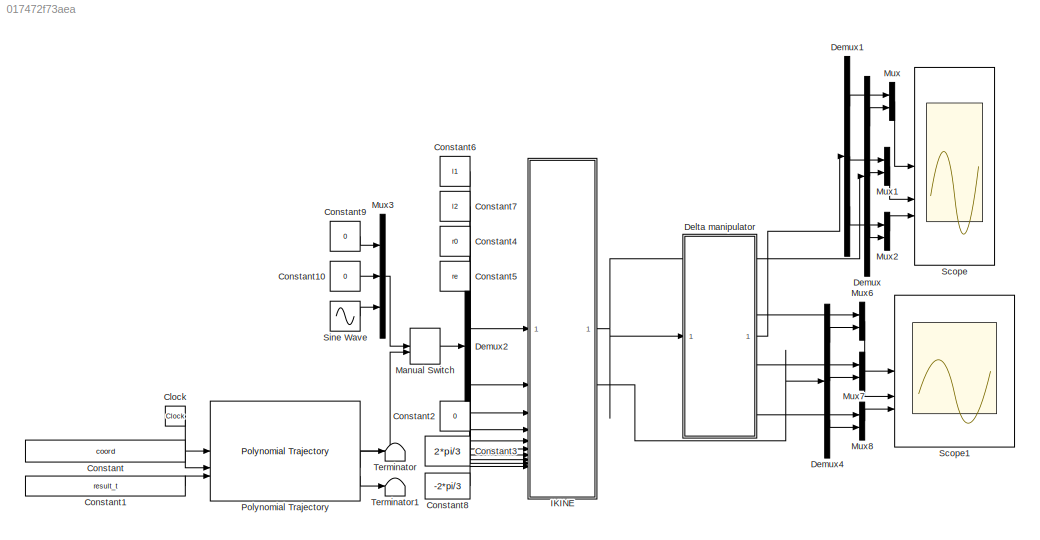
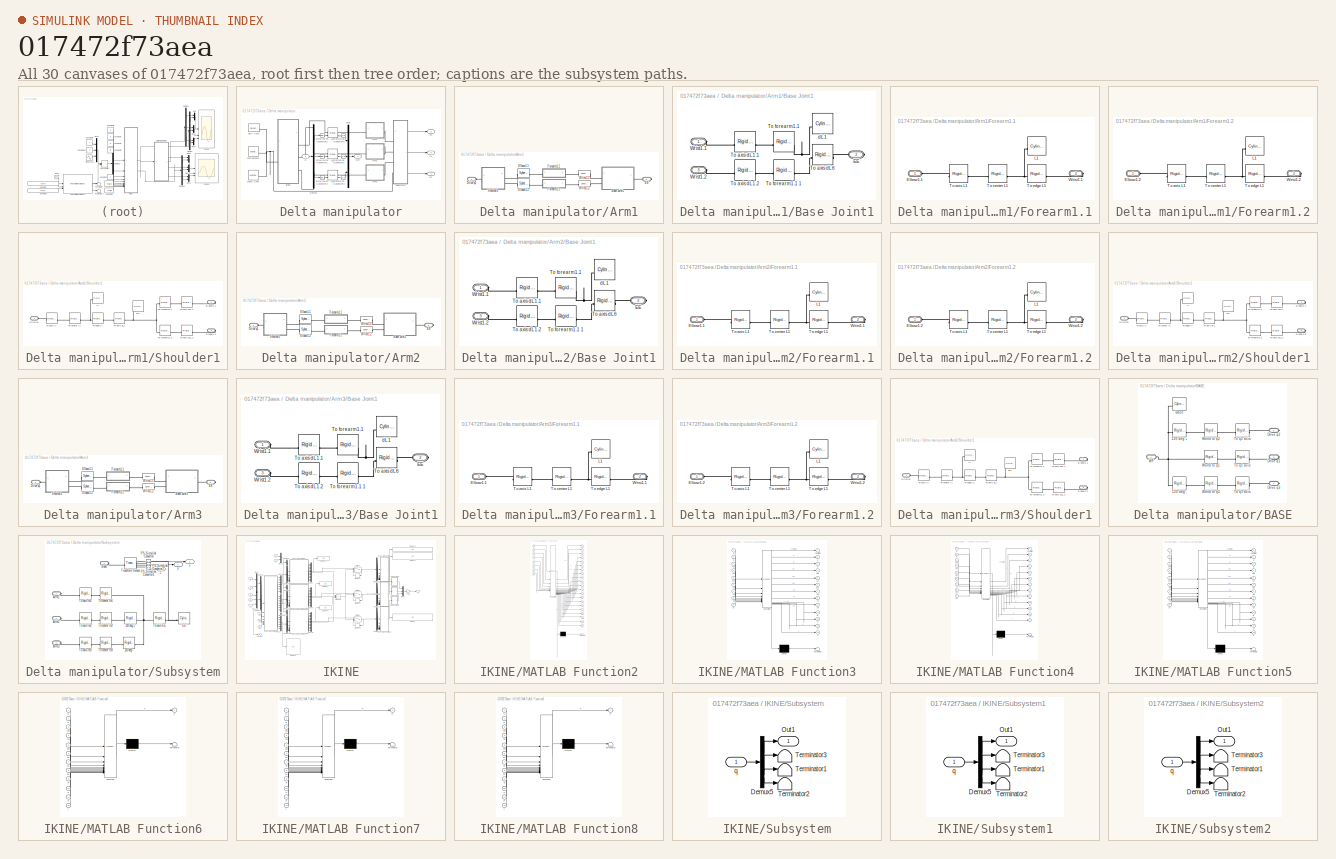
[diagram: thumbnail index - all 30 canvases of the model, root first then tree order]
MODEL slx_017472f73aea
KIND model
CONFIG AbsTol = auto
CONFIG EnableMultiTasking = off
CONFIG FixedStep = auto
CONFIG MaxStep = auto
CONFIG MinStep = auto
CONFIG RelTol = 1e-3
CONFIG SampleTimeConstraint = Unconstrained
CONFIG SolverName = VariableStepAuto
CONFIG StartTime = 0.0
CONFIG StopTime = 10.0
BLOCK [Clock] Clock
BLOCK [Constant] Constant
  Value = coord
BLOCK [Constant] Constant1
  Value = result_t
BLOCK [Constant] Constant10
  Value = 0
BLOCK [Constant] Constant2
  Value = 0
BLOCK [Constant] Constant3
  Value = 2*pi/3
BLOCK [Constant] Constant4
  Value = r0
BLOCK [Constant] Constant5
  Value = re
BLOCK [Constant] Constant6
  Value = l1
BLOCK [Constant] Constant7
  Value = l2
BLOCK [Constant] Constant8
  Value = -2*pi/3
BLOCK [Constant] Constant9
  Value = 0
BLOCK [SubSystem] Delta manipulator
BLOCK [SubSystem] Delta manipulator/Arm1
BLOCK [SubSystem] Delta manipulator/Arm1/Base Joint1
BLOCK [PMIOPort] Delta manipulator/Arm1/Base Joint1/EE
  Port = 2
  Side = Right
BLOCK [Reference] Delta manipulator/Arm1/Base Joint1/To axis dL1.1  REF=sm_lib/Frames and
Transforms/Rigid
Transform
  SourceBlock = sm_lib/Frames and\nTransforms/Rigid\nTransform
  SourceType = Rigid\nTransform
BLOCK [Reference] Delta manipulator/Arm1/Base Joint1/To axis dL1.2  REF=sm_lib/Frames and
Transforms/Rigid
Transform
  SourceBlock = sm_lib/Frames and\nTransforms/Rigid\nTransform
  SourceType = Rigid\nTransform
BLOCK [Reference] Delta manipulator/Arm1/Base Joint1/To axis dL6  REF=sm_lib/Frames and
Transforms/Rigid
Transform
  SourceBlock = sm_lib/Frames and\nTransforms/Rigid\nTransform
  SourceType = Rigid\nTransform
BLOCK [Reference] Delta manipulator/Arm1/Base Joint1/To forearm1.1  REF=sm_lib/Frames and
Transforms/Rigid
Transform
  SourceBlock = sm_lib/Frames and\nTransforms/Rigid\nTransform
  SourceType = Rigid\nTransform
BLOCK [Reference] Delta manipulator/Arm1/Base Joint1/To forearm1.1 1  REF=sm_lib/Frames and
Transforms/Rigid
Transform
  SourceBlock = sm_lib/Frames and\nTransforms/Rigid\nTransform
  SourceType = Rigid\nTransform
BLOCK [PMIOPort] Delta manipulator/Arm1/Base Joint1/Wrist1.1
  Side = Left
BLOCK [PMIOPort] Delta manipulator/Arm1/Base Joint1/Wrist1.2
  Port = 3
  Side = Left
BLOCK [Reference] Delta manipulator/Arm1/Base Joint1/dL1  REF=sm_lib/Body Elements/Cylindrical Solid
  NameLocation = right
  SourceBlock = sm_lib/Body Elements/Cylindrical Solid
  SourceType = Cylindrical Solid
BLOCK [PMIOPort] Delta manipulator/Arm1/Drive q1
  Side = Left
BLOCK [PMIOPort] Delta manipulator/Arm1/EE
  Port = 2
  Side = Right
BLOCK [Reference] Delta manipulator/Arm1/Elbow1.1  REF=sm_lib/Joints/Spherical
Joint
  NameLocation = top
  SourceBlock = sm_lib/Joints/Spherical\nJoint
  SourceType = Spherical\nJoint
BLOCK [Reference] Delta manipulator/Arm1/Elbow1.2  REF=sm_lib/Joints/Spherical
Joint
  SourceBlock = sm_lib/Joints/Spherical\nJoint
  SourceType = Spherical\nJoint
BLOCK [SubSystem] Delta manipulator/Arm1/Forearm1.1
  NameLocation = top
BLOCK [PMIOPort] Delta manipulator/Arm1/Forearm1.1/Elbow1.1
  Side = Left
BLOCK [Reference] Delta manipulator/Arm1/Forearm1.1/L1  REF=sm_lib/Body Elements/Cylindrical Solid
  NameLocation = right
  SourceBlock = sm_lib/Body Elements/Cylindrical Solid
  SourceType = Cylindrical Solid
BLOCK [Reference] Delta manipulator/Arm1/Forearm1.1/To axis L1  REF=sm_lib/Frames and
Transforms/Rigid
Transform
  SourceBlock = sm_lib/Frames and\nTransforms/Rigid\nTransform
  SourceType = Rigid\nTransform
BLOCK [Reference] Delta manipulator/Arm1/Forearm1.1/To center L1  REF=sm_lib/Frames and
Transforms/Rigid
Transform
  SourceBlock = sm_lib/Frames and\nTransforms/Rigid\nTransform
  SourceType = Rigid\nTransform
BLOCK [Reference] Delta manipulator/Arm1/Forearm1.1/To edge L1  REF=sm_lib/Frames and
Transforms/Rigid
Transform
  SourceBlock = sm_lib/Frames and\nTransforms/Rigid\nTransform
  SourceType = Rigid\nTransform
BLOCK [PMIOPort] Delta manipulator/Arm1/Forearm1.1/Wrist1.1
  Port = 2
  Side = Right
BLOCK [SubSystem] Delta manipulator/Arm1/Forearm1.2
BLOCK [PMIOPort] Delta manipulator/Arm1/Forearm1.2/Elbow1.2
  Side = Left
BLOCK [Reference] Delta manipulator/Arm1/Forearm1.2/L1  REF=sm_lib/Body Elements/Cylindrical Solid
  NameLocation = right
  SourceBlock = sm_lib/Body Elements/Cylindrical Solid
  SourceType = Cylindrical Solid
BLOCK [Reference] Delta manipulator/Arm1/Forearm1.2/To axis L1  REF=sm_lib/Frames and
Transforms/Rigid
Transform
  SourceBlock = sm_lib/Frames and\nTransforms/Rigid\nTransform
  SourceType = Rigid\nTransform
BLOCK [Reference] Delta manipulator/Arm1/Forearm1.2/To center L1  REF=sm_lib/Frames and
Transforms/Rigid
Transform
  SourceBlock = sm_lib/Frames and\nTransforms/Rigid\nTransform
  SourceType = Rigid\nTransform
BLOCK [Reference] Delta manipulator/Arm1/Forearm1.2/To edge L1  REF=sm_lib/Frames and
Transforms/Rigid
Transform
  SourceBlock = sm_lib/Frames and\nTransforms/Rigid\nTransform
  SourceType = Rigid\nTransform
BLOCK [PMIOPort] Delta manipulator/Arm1/Forearm1.2/Wrist1.2
  Port = 2
  Side = Right
BLOCK [SubSystem] Delta manipulator/Arm1/Shoulder1
BLOCK [PMIOPort] Delta manipulator/Arm1/Shoulder1/Drive q1
  Side = Left
BLOCK [PMIOPort] Delta manipulator/Arm1/Shoulder1/Elbow1.1
  Port = 2
  Side = Right
BLOCK [PMIOPort] Delta manipulator/Arm1/Shoulder1/Elbow1.2
  Port = 3
  Side = Right
BLOCK [Reference] Delta manipulator/Arm1/Shoulder1/To axis dL1  REF=sm_lib/Frames and
Transforms/Rigid
Transform
  SourceBlock = sm_lib/Frames and\nTransforms/Rigid\nTransform
  SourceType = Rigid\nTransform
BLOCK [Reference] Delta manipulator/Arm1/Shoulder1/To axis dL1.1  REF=sm_lib/Frames and
Transforms/Rigid
Transform
  SourceBlock = sm_lib/Frames and\nTransforms/Rigid\nTransform
  SourceType = Rigid\nTransform
BLOCK [Reference] Delta manipulator/Arm1/Shoulder1/To axis dL1.2  REF=sm_lib/Frames and
Transforms/Rigid
Transform
  SourceBlock = sm_lib/Frames and\nTransforms/Rigid\nTransform
  SourceType = Rigid\nTransform
BLOCK [Reference] Delta manipulator/Arm1/Shoulder1/To axis l1  REF=sm_lib/Frames and
Transforms/Rigid
Transform
  SourceBlock = sm_lib/Frames and\nTransforms/Rigid\nTransform
  SourceType = Rigid\nTransform
BLOCK [Reference] Delta manipulator/Arm1/Shoulder1/To center l1  REF=sm_lib/Frames and
Transforms/Rigid
Transform
  SourceBlock = sm_lib/Frames and\nTransforms/Rigid\nTransform
  SourceType = Rigid\nTransform
BLOCK [Reference] Delta manipulator/Arm1/Shoulder1/To edge l1  REF=sm_lib/Frames and
Transforms/Rigid
Transform
  SourceBlock = sm_lib/Frames and\nTransforms/Rigid\nTransform
  SourceType = Rigid\nTransform
BLOCK [Reference] Delta manipulator/Arm1/Shoulder1/To forearm1.1   REF=sm_lib/Frames and
Transforms/Rigid
Transform
  SourceBlock = sm_lib/Frames and\nTransforms/Rigid\nTransform
  SourceType = Rigid\nTransform
BLOCK [Reference] Delta manipulator/Arm1/Shoulder1/To forearm1.2  REF=sm_lib/Frames and
Transforms/Rigid
Transform
  SourceBlock = sm_lib/Frames and\nTransforms/Rigid\nTransform
  SourceType = Rigid\nTransform
BLOCK [Reference] Delta manipulator/Arm1/Shoulder1/dL1  REF=sm_lib/Body Elements/Cylindrical Solid
  NameLocation = right
  SourceBlock = sm_lib/Body Elements/Cylindrical Solid
  SourceType = Cylindrical Solid
BLOCK [Reference] Delta manipulator/Arm1/Shoulder1/l1  REF=sm_lib/Body Elements/Cylindrical Solid
  NameLocation = right
  SourceBlock = sm_lib/Body Elements/Cylindrical Solid
  SourceType = Cylindrical Solid
BLOCK [Reference] Delta manipulator/Arm1/Wrist1.1  REF=sm_lib/Joints/Spherical
Joint
  NameLocation = top
  SourceBlock = sm_lib/Joints/Spherical\nJoint
  SourceType = Spherical\nJoint
BLOCK [Reference] Delta manipulator/Arm1/Wrist1.2  REF=sm_lib/Joints/Spherical
Joint
  SourceBlock = sm_lib/Joints/Spherical\nJoint
  SourceType = Spherical\nJoint
BLOCK [SubSystem] Delta manipulator/Arm2
BLOCK [SubSystem] Delta manipulator/Arm2/Base Joint1
BLOCK [PMIOPort] Delta manipulator/Arm2/Base Joint1/EE
  Port = 2
  Side = Right
BLOCK [Reference] Delta manipulator/Arm2/Base Joint1/To axis dL1.1  REF=sm_lib/Frames and
Transforms/Rigid
Transform
  SourceBlock = sm_lib/Frames and\nTransforms/Rigid\nTransform
  SourceType = Rigid\nTransform
BLOCK [Reference] Delta manipulator/Arm2/Base Joint1/To axis dL1.2  REF=sm_lib/Frames and
Transforms/Rigid
Transform
  SourceBlock = sm_lib/Frames and\nTransforms/Rigid\nTransform
  SourceType = Rigid\nTransform
BLOCK [Reference] Delta manipulator/Arm2/Base Joint1/To axis dL6  REF=sm_lib/Frames and
Transforms/Rigid
Transform
  SourceBlock = sm_lib/Frames and\nTransforms/Rigid\nTransform
  SourceType = Rigid\nTransform
BLOCK [Reference] Delta manipulator/Arm2/Base Joint1/To forearm1.1  REF=sm_lib/Frames and
Transforms/Rigid
Transform
  SourceBlock = sm_lib/Frames and\nTransforms/Rigid\nTransform
  SourceType = Rigid\nTransform
BLOCK [Reference] Delta manipulator/Arm2/Base Joint1/To forearm1.1 1  REF=sm_lib/Frames and
Transforms/Rigid
Transform
  SourceBlock = sm_lib/Frames and\nTransforms/Rigid\nTransform
  SourceType = Rigid\nTransform
BLOCK [PMIOPort] Delta manipulator/Arm2/Base Joint1/Wrist1.1
  Side = Left
BLOCK [PMIOPort] Delta manipulator/Arm2/Base Joint1/Wrist1.2
  Port = 3
  Side = Left
BLOCK [Reference] Delta manipulator/Arm2/Base Joint1/dL1  REF=sm_lib/Body Elements/Cylindrical Solid
  NameLocation = right
  SourceBlock = sm_lib/Body Elements/Cylindrical Solid
  SourceType = Cylindrical Solid
BLOCK [PMIOPort] Delta manipulator/Arm2/Drive q1
  Side = Left
BLOCK [PMIOPort] Delta manipulator/Arm2/EE
  Port = 2
  Side = Right
BLOCK [Reference] Delta manipulator/Arm2/Elbow1.1  REF=sm_lib/Joints/Spherical
Joint
  NameLocation = top
  SourceBlock = sm_lib/Joints/Spherical\nJoint
  SourceType = Spherical\nJoint
BLOCK [Reference] Delta manipulator/Arm2/Elbow1.2  REF=sm_lib/Joints/Spherical
Joint
  SourceBlock = sm_lib/Joints/Spherical\nJoint
  SourceType = Spherical\nJoint
BLOCK [SubSystem] Delta manipulator/Arm2/Forearm1.1
  NameLocation = top
BLOCK [PMIOPort] Delta manipulator/Arm2/Forearm1.1/Elbow1.1
  Side = Left
BLOCK [Reference] Delta manipulator/Arm2/Forearm1.1/L1  REF=sm_lib/Body Elements/Cylindrical Solid
  NameLocation = right
  SourceBlock = sm_lib/Body Elements/Cylindrical Solid
  SourceType = Cylindrical Solid
BLOCK [Reference] Delta manipulator/Arm2/Forearm1.1/To axis L1  REF=sm_lib/Frames and
Transforms/Rigid
Transform
  SourceBlock = sm_lib/Frames and\nTransforms/Rigid\nTransform
  SourceType = Rigid\nTransform
BLOCK [Reference] Delta manipulator/Arm2/Forearm1.1/To center L1  REF=sm_lib/Frames and
Transforms/Rigid
Transform
  SourceBlock = sm_lib/Frames and\nTransforms/Rigid\nTransform
  SourceType = Rigid\nTransform
BLOCK [Reference] Delta manipulator/Arm2/Forearm1.1/To edge L1  REF=sm_lib/Frames and
Transforms/Rigid
Transform
  SourceBlock = sm_lib/Frames and\nTransforms/Rigid\nTransform
  SourceType = Rigid\nTransform
BLOCK [PMIOPort] Delta manipulator/Arm2/Forearm1.1/Wrist1.1
  Port = 2
  Side = Right
BLOCK [SubSystem] Delta manipulator/Arm2/Forearm1.2
BLOCK [PMIOPort] Delta manipulator/Arm2/Forearm1.2/Elbow1.2
  Side = Left
BLOCK [Reference] Delta manipulator/Arm2/Forearm1.2/L1  REF=sm_lib/Body Elements/Cylindrical Solid
  NameLocation = right
  SourceBlock = sm_lib/Body Elements/Cylindrical Solid
  SourceType = Cylindrical Solid
BLOCK [Reference] Delta manipulator/Arm2/Forearm1.2/To axis L1  REF=sm_lib/Frames and
Transforms/Rigid
Transform
  SourceBlock = sm_lib/Frames and\nTransforms/Rigid\nTransform
  SourceType = Rigid\nTransform
BLOCK [Reference] Delta manipulator/Arm2/Forearm1.2/To center L1  REF=sm_lib/Frames and
Transforms/Rigid
Transform
  SourceBlock = sm_lib/Frames and\nTransforms/Rigid\nTransform
  SourceType = Rigid\nTransform
BLOCK [Reference] Delta manipulator/Arm2/Forearm1.2/To edge L1  REF=sm_lib/Frames and
Transforms/Rigid
Transform
  SourceBlock = sm_lib/Frames and\nTransforms/Rigid\nTransform
  SourceType = Rigid\nTransform
BLOCK [PMIOPort] Delta manipulator/Arm2/Forearm1.2/Wrist1.2
  Port = 2
  Side = Right
BLOCK [SubSystem] Delta manipulator/Arm2/Shoulder1
BLOCK [PMIOPort] Delta manipulator/Arm2/Shoulder1/Drive q1
  Side = Left
BLOCK [PMIOPort] Delta manipulator/Arm2/Shoulder1/Elbow1.1
  Port = 2
  Side = Right
BLOCK [PMIOPort] Delta manipulator/Arm2/Shoulder1/Elbow1.2
  Port = 3
  Side = Right
BLOCK [Reference] Delta manipulator/Arm2/Shoulder1/To axis dL1  REF=sm_lib/Frames and
Transforms/Rigid
Transform
  SourceBlock = sm_lib/Frames and\nTransforms/Rigid\nTransform
  SourceType = Rigid\nTransform
BLOCK [Reference] Delta manipulator/Arm2/Shoulder1/To axis dL1.1  REF=sm_lib/Frames and
Transforms/Rigid
Transform
  SourceBlock = sm_lib/Frames and\nTransforms/Rigid\nTransform
  SourceType = Rigid\nTransform
BLOCK [Reference] Delta manipulator/Arm2/Shoulder1/To axis dL1.2  REF=sm_lib/Frames and
Transforms/Rigid
Transform
  SourceBlock = sm_lib/Frames and\nTransforms/Rigid\nTransform
  SourceType = Rigid\nTransform
BLOCK [Reference] Delta manipulator/Arm2/Shoulder1/To axis l1  REF=sm_lib/Frames and
Transforms/Rigid
Transform
  SourceBlock = sm_lib/Frames and\nTransforms/Rigid\nTransform
  SourceType = Rigid\nTransform
BLOCK [Reference] Delta manipulator/Arm2/Shoulder1/To center l1  REF=sm_lib/Frames and
Transforms/Rigid
Transform
  SourceBlock = sm_lib/Frames and\nTransforms/Rigid\nTransform
  SourceType = Rigid\nTransform
BLOCK [Reference] Delta manipulator/Arm2/Shoulder1/To edge l1  REF=sm_lib/Frames and
Transforms/Rigid
Transform
  SourceBlock = sm_lib/Frames and\nTransforms/Rigid\nTransform
  SourceType = Rigid\nTransform
BLOCK [Reference] Delta manipulator/Arm2/Shoulder1/To forearm1.1   REF=sm_lib/Frames and
Transforms/Rigid
Transform
  SourceBlock = sm_lib/Frames and\nTransforms/Rigid\nTransform
  SourceType = Rigid\nTransform
BLOCK [Reference] Delta manipulator/Arm2/Shoulder1/To forearm1.2  REF=sm_lib/Frames and
Transforms/Rigid
Transform
  SourceBlock = sm_lib/Frames and\nTransforms/Rigid\nTransform
  SourceType = Rigid\nTransform
BLOCK [Reference] Delta manipulator/Arm2/Shoulder1/dL1  REF=sm_lib/Body Elements/Cylindrical Solid
  NameLocation = right
  SourceBlock = sm_lib/Body Elements/Cylindrical Solid
  SourceType = Cylindrical Solid
BLOCK [Reference] Delta manipulator/Arm2/Shoulder1/l1  REF=sm_lib/Body Elements/Cylindrical Solid
  NameLocation = right
  SourceBlock = sm_lib/Body Elements/Cylindrical Solid
  SourceType = Cylindrical Solid
BLOCK [Reference] Delta manipulator/Arm2/Wrist1.1  REF=sm_lib/Joints/Spherical
Joint
  NameLocation = top
  SourceBlock = sm_lib/Joints/Spherical\nJoint
  SourceType = Spherical\nJoint
BLOCK [Reference] Delta manipulator/Arm2/Wrist1.2  REF=sm_lib/Joints/Spherical
Joint
  SourceBlock = sm_lib/Joints/Spherical\nJoint
  SourceType = Spherical\nJoint
BLOCK [SubSystem] Delta manipulator/Arm3
BLOCK [SubSystem] Delta manipulator/Arm3/Base Joint1
BLOCK [PMIOPort] Delta manipulator/Arm3/Base Joint1/EE
  Port = 2
  Side = Right
BLOCK [Reference] Delta manipulator/Arm3/Base Joint1/To axis dL1.1  REF=sm_lib/Frames and
Transforms/Rigid
Transform
  SourceBlock = sm_lib/Frames and\nTransforms/Rigid\nTransform
  SourceType = Rigid\nTransform
BLOCK [Reference] Delta manipulator/Arm3/Base Joint1/To axis dL1.2  REF=sm_lib/Frames and
Transforms/Rigid
Transform
  SourceBlock = sm_lib/Frames and\nTransforms/Rigid\nTransform
  SourceType = Rigid\nTransform
BLOCK [Reference] Delta manipulator/Arm3/Base Joint1/To axis dL6  REF=sm_lib/Frames and
Transforms/Rigid
Transform
  SourceBlock = sm_lib/Frames and\nTransforms/Rigid\nTransform
  SourceType = Rigid\nTransform
BLOCK [Reference] Delta manipulator/Arm3/Base Joint1/To forearm1.1  REF=sm_lib/Frames and
Transforms/Rigid
Transform
  SourceBlock = sm_lib/Frames and\nTransforms/Rigid\nTransform
  SourceType = Rigid\nTransform
BLOCK [Reference] Delta manipulator/Arm3/Base Joint1/To forearm1.1 1  REF=sm_lib/Frames and
Transforms/Rigid
Transform
  SourceBlock = sm_lib/Frames and\nTransforms/Rigid\nTransform
  SourceType = Rigid\nTransform
BLOCK [PMIOPort] Delta manipulator/Arm3/Base Joint1/Wrist1.1
  Side = Left
BLOCK [PMIOPort] Delta manipulator/Arm3/Base Joint1/Wrist1.2
  Port = 3
  Side = Left
BLOCK [Reference] Delta manipulator/Arm3/Base Joint1/dL1  REF=sm_lib/Body Elements/Cylindrical Solid
  NameLocation = right
  SourceBlock = sm_lib/Body Elements/Cylindrical Solid
  SourceType = Cylindrical Solid
BLOCK [PMIOPort] Delta manipulator/Arm3/Drive q1
  Side = Left
BLOCK [PMIOPort] Delta manipulator/Arm3/EE
  Port = 2
  Side = Right
BLOCK [Reference] Delta manipulator/Arm3/Elbow1.1  REF=sm_lib/Joints/Spherical
Joint
  NameLocation = top
  SourceBlock = sm_lib/Joints/Spherical\nJoint
  SourceType = Spherical\nJoint
BLOCK [Reference] Delta manipulator/Arm3/Elbow1.2  REF=sm_lib/Joints/Spherical
Joint
  SourceBlock = sm_lib/Joints/Spherical\nJoint
  SourceType = Spherical\nJoint
BLOCK [SubSystem] Delta manipulator/Arm3/Forearm1.1
  NameLocation = top
BLOCK [PMIOPort] Delta manipulator/Arm3/Forearm1.1/Elbow1.1
  Side = Left
BLOCK [Reference] Delta manipulator/Arm3/Forearm1.1/L1  REF=sm_lib/Body Elements/Cylindrical Solid
  NameLocation = right
  SourceBlock = sm_lib/Body Elements/Cylindrical Solid
  SourceType = Cylindrical Solid
BLOCK [Reference] Delta manipulator/Arm3/Forearm1.1/To axis L1  REF=sm_lib/Frames and
Transforms/Rigid
Transform
  SourceBlock = sm_lib/Frames and\nTransforms/Rigid\nTransform
  SourceType = Rigid\nTransform
BLOCK [Reference] Delta manipulator/Arm3/Forearm1.1/To center L1  REF=sm_lib/Frames and
Transforms/Rigid
Transform
  SourceBlock = sm_lib/Frames and\nTransforms/Rigid\nTransform
  SourceType = Rigid\nTransform
BLOCK [Reference] Delta manipulator/Arm3/Forearm1.1/To edge L1  REF=sm_lib/Frames and
Transforms/Rigid
Transform
  SourceBlock = sm_lib/Frames and\nTransforms/Rigid\nTransform
  SourceType = Rigid\nTransform
BLOCK [PMIOPort] Delta manipulator/Arm3/Forearm1.1/Wrist1.1
  Port = 2
  Side = Right
BLOCK [SubSystem] Delta manipulator/Arm3/Forearm1.2
BLOCK [PMIOPort] Delta manipulator/Arm3/Forearm1.2/Elbow1.2
  Side = Left
BLOCK [Reference] Delta manipulator/Arm3/Forearm1.2/L1  REF=sm_lib/Body Elements/Cylindrical Solid
  NameLocation = right
  SourceBlock = sm_lib/Body Elements/Cylindrical Solid
  SourceType = Cylindrical Solid
BLOCK [Reference] Delta manipulator/Arm3/Forearm1.2/To axis L1  REF=sm_lib/Frames and
Transforms/Rigid
Transform
  SourceBlock = sm_lib/Frames and\nTransforms/Rigid\nTransform
  SourceType = Rigid\nTransform
BLOCK [Reference] Delta manipulator/Arm3/Forearm1.2/To center L1  REF=sm_lib/Frames and
Transforms/Rigid
Transform
  SourceBlock = sm_lib/Frames and\nTransforms/Rigid\nTransform
  SourceType = Rigid\nTransform
BLOCK [Reference] Delta manipulator/Arm3/Forearm1.2/To edge L1  REF=sm_lib/Frames and
Transforms/Rigid
Transform
  SourceBlock = sm_lib/Frames and\nTransforms/Rigid\nTransform
  SourceType = Rigid\nTransform
BLOCK [PMIOPort] Delta manipulator/Arm3/Forearm1.2/Wrist1.2
  Port = 2
  Side = Right
BLOCK [SubSystem] Delta manipulator/Arm3/Shoulder1
BLOCK [PMIOPort] Delta manipulator/Arm3/Shoulder1/Drive q1
  Side = Left
BLOCK [PMIOPort] Delta manipulator/Arm3/Shoulder1/Elbow1.1
  Port = 2
  Side = Right
BLOCK [PMIOPort] Delta manipulator/Arm3/Shoulder1/Elbow1.2
  Port = 3
  Side = Right
BLOCK [Reference] Delta manipulator/Arm3/Shoulder1/To axis dL1  REF=sm_lib/Frames and
Transforms/Rigid
Transform
  SourceBlock = sm_lib/Frames and\nTransforms/Rigid\nTransform
  SourceType = Rigid\nTransform
BLOCK [Reference] Delta manipulator/Arm3/Shoulder1/To axis dL1.1  REF=sm_lib/Frames and
Transforms/Rigid
Transform
  SourceBlock = sm_lib/Frames and\nTransforms/Rigid\nTransform
  SourceType = Rigid\nTransform
BLOCK [Reference] Delta manipulator/Arm3/Shoulder1/To axis dL1.2  REF=sm_lib/Frames and
Transforms/Rigid
Transform
  SourceBlock = sm_lib/Frames and\nTransforms/Rigid\nTransform
  SourceType = Rigid\nTransform
BLOCK [Reference] Delta manipulator/Arm3/Shoulder1/To axis l1  REF=sm_lib/Frames and
Transforms/Rigid
Transform
  SourceBlock = sm_lib/Frames and\nTransforms/Rigid\nTransform
  SourceType = Rigid\nTransform
BLOCK [Reference] Delta manipulator/Arm3/Shoulder1/To center l1  REF=sm_lib/Frames and
Transforms/Rigid
Transform
  SourceBlock = sm_lib/Frames and\nTransforms/Rigid\nTransform
  SourceType = Rigid\nTransform
BLOCK [Reference] Delta manipulator/Arm3/Shoulder1/To edge l1  REF=sm_lib/Frames and
Transforms/Rigid
Transform
  SourceBlock = sm_lib/Frames and\nTransforms/Rigid\nTransform
  SourceType = Rigid\nTransform
BLOCK [Reference] Delta manipulator/Arm3/Shoulder1/To forearm1.1   REF=sm_lib/Frames and
Transforms/Rigid
Transform
  SourceBlock = sm_lib/Frames and\nTransforms/Rigid\nTransform
  SourceType = Rigid\nTransform
BLOCK [Reference] Delta manipulator/Arm3/Shoulder1/To forearm1.2  REF=sm_lib/Frames and
Transforms/Rigid
Transform
  SourceBlock = sm_lib/Frames and\nTransforms/Rigid\nTransform
  SourceType = Rigid\nTransform
BLOCK [Reference] Delta manipulator/Arm3/Shoulder1/dL1  REF=sm_lib/Body Elements/Cylindrical Solid
  NameLocation = right
  SourceBlock = sm_lib/Body Elements/Cylindrical Solid
  SourceType = Cylindrical Solid
BLOCK [Reference] Delta manipulator/Arm3/Shoulder1/l1  REF=sm_lib/Body Elements/Cylindrical Solid
  NameLocation = right
  SourceBlock = sm_lib/Body Elements/Cylindrical Solid
  SourceType = Cylindrical Solid
BLOCK [Reference] Delta manipulator/Arm3/Wrist1.1  REF=sm_lib/Joints/Spherical
Joint
  NameLocation = top
  SourceBlock = sm_lib/Joints/Spherical\nJoint
  SourceType = Spherical\nJoint
BLOCK [Reference] Delta manipulator/Arm3/Wrist1.2  REF=sm_lib/Joints/Spherical
Joint
  SourceBlock = sm_lib/Joints/Spherical\nJoint
  SourceType = Spherical\nJoint
BLOCK [SubSystem] Delta manipulator/BASE
BLOCK [Reference] Delta manipulator/BASE/120 deg +  REF=sm_lib/Frames and
Transforms/Rigid
Transform
  SourceBlock = sm_lib/Frames and\nTransforms/Rigid\nTransform
  SourceType = Rigid\nTransform
BLOCK [Reference] Delta manipulator/BASE/120 deg -  REF=sm_lib/Frames and
Transforms/Rigid
Transform
  SourceBlock = sm_lib/Frames and\nTransforms/Rigid\nTransform
  SourceType = Rigid\nTransform
BLOCK [Reference] Delta manipulator/BASE/Base  REF=sm_lib/Body Elements/Cylindrical Solid
  NameLocation = right
  SourceBlock = sm_lib/Body Elements/Cylindrical Solid
  SourceType = Cylindrical Solid
BLOCK [PMIOPort] Delta manipulator/BASE/Drive q1
  Port = 2
  Side = Right
BLOCK [PMIOPort] Delta manipulator/BASE/Drive q2
  Port = 3
  Side = Right
BLOCK [PMIOPort] Delta manipulator/BASE/Drive q3
  Port = 4
  Side = Right
BLOCK [Reference] Delta manipulator/BASE/To q1 axis  REF=sm_lib/Frames and
Transforms/Rigid
Transform
  SourceBlock = sm_lib/Frames and\nTransforms/Rigid\nTransform
  SourceType = Rigid\nTransform
BLOCK [Reference] Delta manipulator/BASE/To q2 axis  REF=sm_lib/Frames and
Transforms/Rigid
Transform
  SourceBlock = sm_lib/Frames and\nTransforms/Rigid\nTransform
  SourceType = Rigid\nTransform
BLOCK [Reference] Delta manipulator/BASE/To q3 axis  REF=sm_lib/Frames and
Transforms/Rigid
Transform
  SourceBlock = sm_lib/Frames and\nTransforms/Rigid\nTransform
  SourceType = Rigid\nTransform
BLOCK [PMIOPort] Delta manipulator/BASE/WF
  Side = Left
BLOCK [Reference] Delta manipulator/BASE/World to q1  REF=sm_lib/Frames and
Transforms/Rigid
Transform
  SourceBlock = sm_lib/Frames and\nTransforms/Rigid\nTransform
  SourceType = Rigid\nTransform
BLOCK [Reference] Delta manipulator/BASE/World to q2  REF=sm_lib/Frames and
Transforms/Rigid
Transform
  SourceBlock = sm_lib/Frames and\nTransforms/Rigid\nTransform
  SourceType = Rigid\nTransform
BLOCK [Reference] Delta manipulator/BASE/World to q3  REF=sm_lib/Frames and
Transforms/Rigid
Transform
  SourceBlock = sm_lib/Frames and\nTransforms/Rigid\nTransform
  SourceType = Rigid\nTransform
BLOCK [Demux] Delta manipulator/Demux
  Outputs = 3
BLOCK [Reference] Delta manipulator/Mech. Conf.  REF=sm_lib/Utilities/Mechanism
Configuration
  SourceBlock = sm_lib/Utilities/Mechanism\nConfiguration
  SourceType = Mechanism\nConfiguration
BLOCK [Mux] Delta manipulator/Mux
  DisplayOption = bar
  Inputs = 3
BLOCK [Reference] Delta manipulator/PS-Simulink Converter1  REF=nesl_utility/PS-Simulink
Converter
  SourceBlock = nesl_utility/PS-Simulink\nConverter
  SourceType = PS-Simulink\nConverter
BLOCK [Reference] Delta manipulator/PS-Simulink Converter2  REF=nesl_utility/PS-Simulink
Converter
  SourceBlock = nesl_utility/PS-Simulink\nConverter
  SourceType = PS-Simulink\nConverter
BLOCK [Reference] Delta manipulator/PS-Simulink Converter3  REF=nesl_utility/PS-Simulink
Converter
  SourceBlock = nesl_utility/PS-Simulink\nConverter
  SourceType = PS-Simulink\nConverter
BLOCK [Inport] Delta manipulator/Q
BLOCK [Reference] Delta manipulator/Q1  REF=sm_lib/Joints/Revolute Joint
  SourceBlock = sm_lib/Joints/Revolute Joint
  SourceType = Revolute Joint
BLOCK [Reference] Delta manipulator/Q2  REF=sm_lib/Joints/Revolute Joint
  SourceBlock = sm_lib/Joints/Revolute Joint
  SourceType = Revolute Joint
BLOCK [Reference] Delta manipulator/Q3  REF=sm_lib/Joints/Revolute Joint
  SourceBlock = sm_lib/Joints/Revolute Joint
  SourceType = Revolute Joint
BLOCK [Outport] Delta manipulator/Qm
BLOCK [Reference] Delta manipulator/Simulink-PS Converter1  REF=nesl_utility/Simulink-PS
Converter
  SourceBlock = nesl_utility/Simulink-PS\nConverter
  SourceType = Simulink-PS\nConverter
BLOCK [Reference] Delta manipulator/Simulink-PS Converter2  REF=nesl_utility/Simulink-PS
Converter
  SourceBlock = nesl_utility/Simulink-PS\nConverter
  SourceType = Simulink-PS\nConverter
BLOCK [Reference] Delta manipulator/Simulink-PS Converter3  REF=nesl_utility/Simulink-PS
Converter
  SourceBlock = nesl_utility/Simulink-PS\nConverter
  SourceType = Simulink-PS\nConverter
BLOCK [Reference] Delta manipulator/Solv. Conf.  REF=nesl_utility/Solver
Configuration
  SourceBlock = nesl_utility/Solver\nConfiguration
  SourceType = Solver\nConfiguration
BLOCK [SubSystem] Delta manipulator/Subsystem
BLOCK [Reference] Delta manipulator/Subsystem/120 deg +  REF=sm_lib/Frames and
Transforms/Rigid
Transform
  SourceBlock = sm_lib/Frames and\nTransforms/Rigid\nTransform
  SourceType = Rigid\nTransform
BLOCK [Reference] Delta manipulator/Subsystem/120 deg -  REF=sm_lib/Frames and
Transforms/Rigid
Transform
  SourceBlock = sm_lib/Frames and\nTransforms/Rigid\nTransform
  SourceType = Rigid\nTransform
BLOCK [PMIOPort] Delta manipulator/Subsystem/Arm1
  Side = Left
BLOCK [PMIOPort] Delta manipulator/Subsystem/Arm2
  Port = 2
  Side = Left
BLOCK [PMIOPort] Delta manipulator/Subsystem/Arm3
  Port = 3
  Side = Left
BLOCK [PMIOPort] Delta manipulator/Subsystem/Base
  Port = 4
  Side = Left
BLOCK [Reference] Delta manipulator/Subsystem/EE  REF=sm_lib/Body Elements/Cylindrical Solid
  NameLocation = right
  SourceBlock = sm_lib/Body Elements/Cylindrical Solid
  SourceType = Cylindrical Solid
BLOCK [Reference] Delta manipulator/Subsystem/PS-Simulink Converter  REF=nesl_utility/PS-Simulink
Converter
  SourceBlock = nesl_utility/PS-Simulink\nConverter
  SourceType = PS-Simulink\nConverter
BLOCK [Reference] Delta manipulator/Subsystem/PS-Simulink Converter1  REF=nesl_utility/PS-Simulink
Converter
  SourceBlock = nesl_utility/PS-Simulink\nConverter
  SourceType = PS-Simulink\nConverter
BLOCK [Reference] Delta manipulator/Subsystem/PS-Simulink Converter2  REF=nesl_utility/PS-Simulink
Converter
  SourceBlock = nesl_utility/PS-Simulink\nConverter
  SourceType = PS-Simulink\nConverter
BLOCK [Reference] Delta manipulator/Subsystem/To axis EE  REF=sm_lib/Frames and
Transforms/Rigid
Transform
  SourceBlock = sm_lib/Frames and\nTransforms/Rigid\nTransform
  SourceType = Rigid\nTransform
BLOCK [Reference] Delta manipulator/Subsystem/To axis re1  REF=sm_lib/Frames and
Transforms/Rigid
Transform
  SourceBlock = sm_lib/Frames and\nTransforms/Rigid\nTransform
  SourceType = Rigid\nTransform
BLOCK [Reference] Delta manipulator/Subsystem/To axis re2  REF=sm_lib/Frames and
Transforms/Rigid
Transform
  SourceBlock = sm_lib/Frames and\nTransforms/Rigid\nTransform
  SourceType = Rigid\nTransform
BLOCK [Reference] Delta manipulator/Subsystem/To axis re3  REF=sm_lib/Frames and
Transforms/Rigid
Transform
  SourceBlock = sm_lib/Frames and\nTransforms/Rigid\nTransform
  SourceType = Rigid\nTransform
BLOCK [Reference] Delta manipulator/Subsystem/To center re1  REF=sm_lib/Frames and
Transforms/Rigid
Transform
  SourceBlock = sm_lib/Frames and\nTransforms/Rigid\nTransform
  SourceType = Rigid\nTransform
BLOCK [Reference] Delta manipulator/Subsystem/To center re2  REF=sm_lib/Frames and
Transforms/Rigid
Transform
  SourceBlock = sm_lib/Frames and\nTransforms/Rigid\nTransform
  SourceType = Rigid\nTransform
BLOCK [Reference] Delta manipulator/Subsystem/To center re3  REF=sm_lib/Frames and
Transforms/Rigid
Transform
  SourceBlock = sm_lib/Frames and\nTransforms/Rigid\nTransform
  SourceType = Rigid\nTransform
BLOCK [Reference] Delta manipulator/Subsystem/Transform Sensor  REF=sm_lib/Frames and
Transforms/Transform
Sensor
  SourceBlock = sm_lib/Frames and\nTransforms/Transform\nSensor
  SourceType = Transform\nSensor
BLOCK [Outport] Delta manipulator/Subsystem/x
BLOCK [Outport] Delta manipulator/Subsystem/y
  Port = 2
BLOCK [Outport] Delta manipulator/Subsystem/z
  Port = 3
BLOCK [Reference] Delta manipulator/WorldFrame  REF=sm_lib/Frames and
Transforms/World Frame
  SourceBlock = sm_lib/Frames and\nTransforms/World Frame
  SourceType = World Frame
BLOCK [Outport] Delta manipulator/xe
  Port = 2
BLOCK [Outport] Delta manipulator/ye
  Port = 3
BLOCK [Outport] Delta manipulator/ze
  Port = 4
BLOCK [Demux] Demux
  Outputs = 3
BLOCK [Demux] Demux1
  Outputs = 3
BLOCK [Demux] Demux2
  Outputs = 3
BLOCK [Demux] Demux4
  Outputs = 3
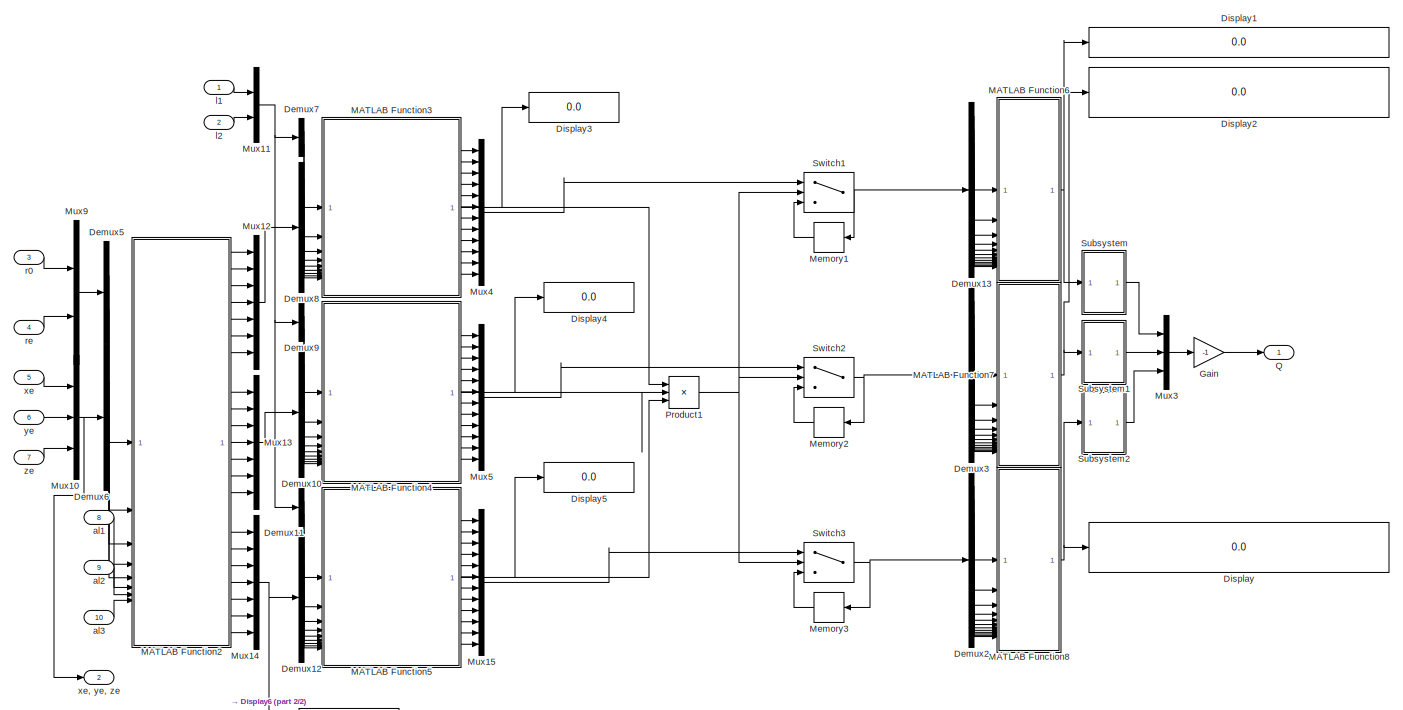
[diagram: IKINE - part 1/2, most of the canvas]
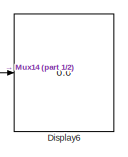
[diagram: IKINE - part 2/2, bottom left region]
BLOCK [SubSystem] IKINE
BLOCK [Demux] IKINE/Demux10
  Outputs = 7
BLOCK [Demux] IKINE/Demux11
  Outputs = 2
BLOCK [Demux] IKINE/Demux12
  Outputs = 7
BLOCK [Demux] IKINE/Demux13
  Outputs = 12
BLOCK [Demux] IKINE/Demux2
  Outputs = 12
BLOCK [Demux] IKINE/Demux3
  Outputs = 12
BLOCK [Demux] IKINE/Demux5
  Outputs = 2
BLOCK [Demux] IKINE/Demux6
  Outputs = 3
BLOCK [Demux] IKINE/Demux7
  Outputs = 2
BLOCK [Demux] IKINE/Demux8
  Outputs = 7
BLOCK [Demux] IKINE/Demux9
  Outputs = 2
BLOCK [Display] IKINE/Display
  Decimation = 1
BLOCK [Display] IKINE/Display1
  Decimation = 1
BLOCK [Display] IKINE/Display2
  Decimation = 1
BLOCK [Display] IKINE/Display3
  Decimation = 1
BLOCK [Display] IKINE/Display4
  Decimation = 1
BLOCK [Display] IKINE/Display5
  Decimation = 1
BLOCK [Display] IKINE/Display6
  Decimation = 1
BLOCK [Gain] IKINE/Gain
  Gain = -1
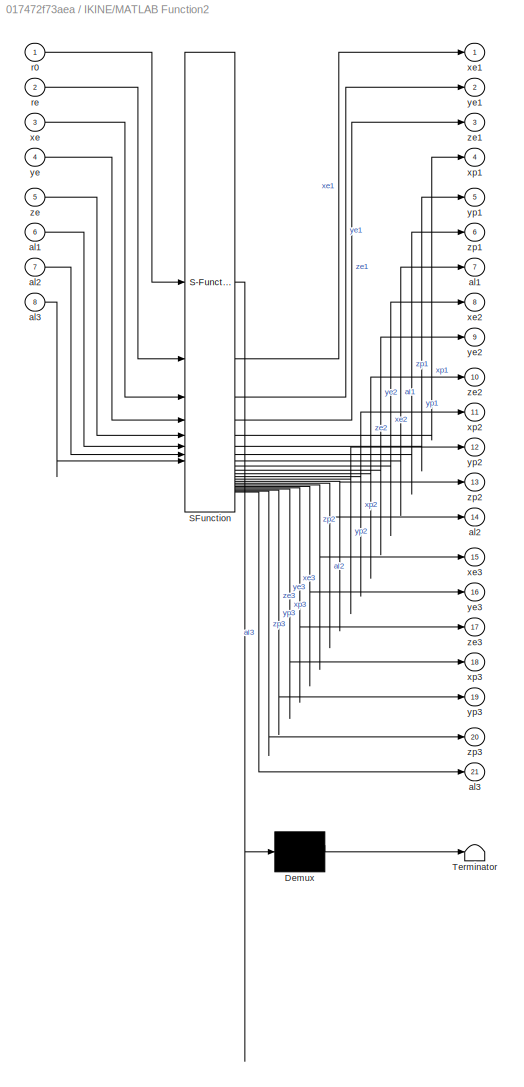
BLOCK [SubSystem] IKINE/MATLAB Function2
  ErrorFcn = Stateflow.Translate.translate
  LibrarySourceBlock = simulink/User-Defined\nFunctions/MATLAB Function
  PermitHierarchicalResolution = ExplicitOnly
  SFBlockType = MATLAB Function
  TreatAsAtomicUnit = on
BLOCK [Demux] IKINE/MATLAB Function2/ Demux 
  Outputs = 1
BLOCK [S-Function] IKINE/MATLAB Function2/ SFunction 
  EnableBusSupport = on
  FunctionName = sf_sfun
  PortCounts = [8 22]
  SFcnIsStateOwnerBlock = off
  SFunctionDeploymentMode = off
  Tag = Stateflow S-Function 3
BLOCK [Terminator] IKINE/MATLAB Function2/ Terminator 
BLOCK [Outport] IKINE/MATLAB Function2/al1
  Port = 7
BLOCK [Inport] IKINE/MATLAB Function2/al1 
  Port = 6
BLOCK [Outport] IKINE/MATLAB Function2/al2
  Port = 14
BLOCK [Inport] IKINE/MATLAB Function2/al2 
  Port = 7
BLOCK [Outport] IKINE/MATLAB Function2/al3
  Port = 21
BLOCK [Inport] IKINE/MATLAB Function2/al3 
  Port = 8
BLOCK [Inport] IKINE/MATLAB Function2/r0
BLOCK [Inport] IKINE/MATLAB Function2/re
  Port = 2
BLOCK [Inport] IKINE/MATLAB Function2/xe
  Port = 3
BLOCK [Outport] IKINE/MATLAB Function2/xe1
BLOCK [Outport] IKINE/MATLAB Function2/xe2
  Port = 8
BLOCK [Outport] IKINE/MATLAB Function2/xe3
  Port = 15
BLOCK [Outport] IKINE/MATLAB Function2/xp1
  Port = 4
BLOCK [Outport] IKINE/MATLAB Function2/xp2
  Port = 11
BLOCK [Outport] IKINE/MATLAB Function2/xp3
  Port = 18
BLOCK [Inport] IKINE/MATLAB Function2/ye
  Port = 4
BLOCK [Outport] IKINE/MATLAB Function2/ye1
  Port = 2
BLOCK [Outport] IKINE/MATLAB Function2/ye2
  Port = 9
BLOCK [Outport] IKINE/MATLAB Function2/ye3
  Port = 16
BLOCK [Outport] IKINE/MATLAB Function2/yp1
  Port = 5
BLOCK [Outport] IKINE/MATLAB Function2/yp2
  Port = 12
BLOCK [Outport] IKINE/MATLAB Function2/yp3
  Port = 19
BLOCK [Inport] IKINE/MATLAB Function2/ze
  Port = 5
BLOCK [Outport] IKINE/MATLAB Function2/ze1
  Port = 3
BLOCK [Outport] IKINE/MATLAB Function2/ze2
  Port = 10
BLOCK [Outport] IKINE/MATLAB Function2/ze3
  Port = 17
BLOCK [Outport] IKINE/MATLAB Function2/zp1
  Port = 6
BLOCK [Outport] IKINE/MATLAB Function2/zp2
  Port = 13
BLOCK [Outport] IKINE/MATLAB Function2/zp3
  Port = 20
BLOCK [SubSystem] IKINE/MATLAB Function3
  ErrorFcn = Stateflow.Translate.translate
  LibrarySourceBlock = simulink/User-Defined\nFunctions/MATLAB Function
  PermitHierarchicalResolution = ExplicitOnly
  SFBlockType = MATLAB Function
  TreatAsAtomicUnit = on
BLOCK [Demux] IKINE/MATLAB Function3/ Demux 
  Outputs = 1
BLOCK [S-Function] IKINE/MATLAB Function3/ SFunction 
  EnableBusSupport = on
  FunctionName = sf_sfun
  PortCounts = [9 14]
  SFcnIsStateOwnerBlock = off
  SFunctionDeploymentMode = off
  Tag = Stateflow S-Function 4
BLOCK [Terminator] IKINE/MATLAB Function3/ Terminator 
BLOCK [Outport] IKINE/MATLAB Function3/a
  Port = 11
BLOCK [Outport] IKINE/MATLAB Function3/al
  Port = 10
BLOCK [Inport] IKINE/MATLAB Function3/al 
  Port = 9
BLOCK [Outport] IKINE/MATLAB Function3/b
  Port = 12
BLOCK [Outport] IKINE/MATLAB Function3/c
  Port = 13
BLOCK [Outport] IKINE/MATLAB Function3/condition
BLOCK [Outport] IKINE/MATLAB Function3/l1
  Port = 2
BLOCK [Inport] IKINE/MATLAB Function3/l1 
BLOCK [Outport] IKINE/MATLAB Function3/l2
  Port = 3
BLOCK [Inport] IKINE/MATLAB Function3/l2 
  Port = 2
BLOCK [Outport] IKINE/MATLAB Function3/xei
  Port = 4
BLOCK [Inport] IKINE/MATLAB Function3/xei 
  Port = 3
BLOCK [Outport] IKINE/MATLAB Function3/xp
  Port = 7
BLOCK [Inport] IKINE/MATLAB Function3/xp 
  Port = 6
BLOCK [Outport] IKINE/MATLAB Function3/yei
  Port = 5
BLOCK [Inport] IKINE/MATLAB Function3/yei 
  Port = 4
BLOCK [Outport] IKINE/MATLAB Function3/yp
  Port = 8
BLOCK [Inport] IKINE/MATLAB Function3/yp 
  Port = 7
BLOCK [Outport] IKINE/MATLAB Function3/zei
  Port = 6
BLOCK [Inport] IKINE/MATLAB Function3/zei 
  Port = 5
BLOCK [Outport] IKINE/MATLAB Function3/zp
  Port = 9
BLOCK [Inport] IKINE/MATLAB Function3/zp 
  Port = 8
BLOCK [SubSystem] IKINE/MATLAB Function4
  ErrorFcn = Stateflow.Translate.translate
  LibrarySourceBlock = simulink/User-Defined\nFunctions/MATLAB Function
  PermitHierarchicalResolution = ExplicitOnly
  SFBlockType = MATLAB Function
  TreatAsAtomicUnit = on
BLOCK [Demux] IKINE/MATLAB Function4/ Demux 
  Outputs = 1
BLOCK [S-Function] IKINE/MATLAB Function4/ SFunction 
  EnableBusSupport = on
  FunctionName = sf_sfun
  PortCounts = [9 14]
  SFcnIsStateOwnerBlock = off
  SFunctionDeploymentMode = off
  Tag = Stateflow S-Function 5
BLOCK [Terminator] IKINE/MATLAB Function4/ Terminator 
BLOCK [Outport] IKINE/MATLAB Function4/a
  Port = 11
BLOCK [Outport] IKINE/MATLAB Function4/al
  Port = 10
BLOCK [Inport] IKINE/MATLAB Function4/al 
  Port = 9
BLOCK [Outport] IKINE/MATLAB Function4/b
  Port = 12
BLOCK [Outport] IKINE/MATLAB Function4/c
  Port = 13
BLOCK [Outport] IKINE/MATLAB Function4/condition
BLOCK [Outport] IKINE/MATLAB Function4/l1
  Port = 2
BLOCK [Inport] IKINE/MATLAB Function4/l1 
BLOCK [Outport] IKINE/MATLAB Function4/l2
  Port = 3
BLOCK [Inport] IKINE/MATLAB Function4/l2 
  Port = 2
BLOCK [Outport] IKINE/MATLAB Function4/xei
  Port = 4
BLOCK [Inport] IKINE/MATLAB Function4/xei 
  Port = 3
BLOCK [Outport] IKINE/MATLAB Function4/xp
  Port = 7
BLOCK [Inport] IKINE/MATLAB Function4/xp 
  Port = 6
BLOCK [Outport] IKINE/MATLAB Function4/yei
  Port = 5
BLOCK [Inport] IKINE/MATLAB Function4/yei 
  Port = 4
BLOCK [Outport] IKINE/MATLAB Function4/yp
  Port = 8
BLOCK [Inport] IKINE/MATLAB Function4/yp 
  Port = 7
BLOCK [Outport] IKINE/MATLAB Function4/zei
  Port = 6
BLOCK [Inport] IKINE/MATLAB Function4/zei 
  Port = 5
BLOCK [Outport] IKINE/MATLAB Function4/zp
  Port = 9
BLOCK [Inport] IKINE/MATLAB Function4/zp 
  Port = 8
BLOCK [SubSystem] IKINE/MATLAB Function5
  ErrorFcn = Stateflow.Translate.translate
  LibrarySourceBlock = simulink/User-Defined\nFunctions/MATLAB Function
  PermitHierarchicalResolution = ExplicitOnly
  SFBlockType = MATLAB Function
  TreatAsAtomicUnit = on
BLOCK [Demux] IKINE/MATLAB Function5/ Demux 
  Outputs = 1
BLOCK [S-Function] IKINE/MATLAB Function5/ SFunction 
  EnableBusSupport = on
  FunctionName = sf_sfun
  PortCounts = [9 14]
  SFcnIsStateOwnerBlock = off
  SFunctionDeploymentMode = off
  Tag = Stateflow S-Function 6
BLOCK [Terminator] IKINE/MATLAB Function5/ Terminator 
BLOCK [Outport] IKINE/MATLAB Function5/a
  Port = 11
BLOCK [Outport] IKINE/MATLAB Function5/al
  Port = 10
BLOCK [Inport] IKINE/MATLAB Function5/al 
  Port = 9
BLOCK [Outport] IKINE/MATLAB Function5/b
  Port = 12
BLOCK [Outport] IKINE/MATLAB Function5/c
  Port = 13
BLOCK [Outport] IKINE/MATLAB Function5/condition
BLOCK [Outport] IKINE/MATLAB Function5/l1
  Port = 2
BLOCK [Inport] IKINE/MATLAB Function5/l1 
BLOCK [Outport] IKINE/MATLAB Function5/l2
  Port = 3
BLOCK [Inport] IKINE/MATLAB Function5/l2 
  Port = 2
BLOCK [Outport] IKINE/MATLAB Function5/xei
  Port = 4
BLOCK [Inport] IKINE/MATLAB Function5/xei 
  Port = 3
BLOCK [Outport] IKINE/MATLAB Function5/xp
  Port = 7
BLOCK [Inport] IKINE/MATLAB Function5/xp 
  Port = 6
BLOCK [Outport] IKINE/MATLAB Function5/yei
  Port = 5
BLOCK [Inport] IKINE/MATLAB Function5/yei 
  Port = 4
BLOCK [Outport] IKINE/MATLAB Function5/yp
  Port = 8
BLOCK [Inport] IKINE/MATLAB Function5/yp 
  Port = 7
BLOCK [Outport] IKINE/MATLAB Function5/zei
  Port = 6
BLOCK [Inport] IKINE/MATLAB Function5/zei 
  Port = 5
BLOCK [Outport] IKINE/MATLAB Function5/zp
  Port = 9
BLOCK [Inport] IKINE/MATLAB Function5/zp 
  Port = 8
BLOCK [SubSystem] IKINE/MATLAB Function6
  ErrorFcn = Stateflow.Translate.translate
  LibrarySourceBlock = simulink/User-Defined\nFunctions/MATLAB Function
  PermitHierarchicalResolution = ExplicitOnly
  SFBlockType = MATLAB Function
  TreatAsAtomicUnit = on
BLOCK [Demux] IKINE/MATLAB Function6/ Demux 
  Outputs = 1
BLOCK [S-Function] IKINE/MATLAB Function6/ SFunction 
  EnableBusSupport = on
  FunctionName = sf_sfun
  PortCounts = [12 2]
  SFcnIsStateOwnerBlock = off
  SFunctionDeploymentMode = off
  Tag = Stateflow S-Function 7
BLOCK [Terminator] IKINE/MATLAB Function6/ Terminator 
BLOCK [Inport] IKINE/MATLAB Function6/a
  Port = 10
BLOCK [Inport] IKINE/MATLAB Function6/al
  Port = 9
BLOCK [Inport] IKINE/MATLAB Function6/b
  Port = 11
BLOCK [Inport] IKINE/MATLAB Function6/c
  Port = 12
BLOCK [Inport] IKINE/MATLAB Function6/l1
BLOCK [Inport] IKINE/MATLAB Function6/l2
  Port = 2
BLOCK [Outport] IKINE/MATLAB Function6/q
BLOCK [Inport] IKINE/MATLAB Function6/xei
  Port = 3
BLOCK [Inport] IKINE/MATLAB Function6/xp
  Port = 6
BLOCK [Inport] IKINE/MATLAB Function6/yei
  Port = 4
BLOCK [Inport] IKINE/MATLAB Function6/yp
  Port = 7
BLOCK [Inport] IKINE/MATLAB Function6/zei
  Port = 5
BLOCK [Inport] IKINE/MATLAB Function6/zp
  Port = 8
BLOCK [SubSystem] IKINE/MATLAB Function7
  ErrorFcn = Stateflow.Translate.translate
  LibrarySourceBlock = simulink/User-Defined\nFunctions/MATLAB Function
  PermitHierarchicalResolution = ExplicitOnly
  SFBlockType = MATLAB Function
  TreatAsAtomicUnit = on
BLOCK [Demux] IKINE/MATLAB Function7/ Demux 
  Outputs = 1
BLOCK [S-Function] IKINE/MATLAB Function7/ SFunction 
  EnableBusSupport = on
  FunctionName = sf_sfun
  PortCounts = [12 2]
  SFcnIsStateOwnerBlock = off
  SFunctionDeploymentMode = off
  Tag = Stateflow S-Function 8
BLOCK [Terminator] IKINE/MATLAB Function7/ Terminator 
BLOCK [Inport] IKINE/MATLAB Function7/a
  Port = 10
BLOCK [Inport] IKINE/MATLAB Function7/al
  Port = 9
BLOCK [Inport] IKINE/MATLAB Function7/b
  Port = 11
BLOCK [Inport] IKINE/MATLAB Function7/c
  Port = 12
BLOCK [Inport] IKINE/MATLAB Function7/l1
BLOCK [Inport] IKINE/MATLAB Function7/l2
  Port = 2
BLOCK [Outport] IKINE/MATLAB Function7/q
BLOCK [Inport] IKINE/MATLAB Function7/xei
  Port = 3
BLOCK [Inport] IKINE/MATLAB Function7/xp
  Port = 6
BLOCK [Inport] IKINE/MATLAB Function7/yei
  Port = 4
BLOCK [Inport] IKINE/MATLAB Function7/yp
  Port = 7
BLOCK [Inport] IKINE/MATLAB Function7/zei
  Port = 5
BLOCK [Inport] IKINE/MATLAB Function7/zp
  Port = 8
BLOCK [SubSystem] IKINE/MATLAB Function8
  ErrorFcn = Stateflow.Translate.translate
  LibrarySourceBlock = simulink/User-Defined\nFunctions/MATLAB Function
  PermitHierarchicalResolution = ExplicitOnly
  SFBlockType = MATLAB Function
  TreatAsAtomicUnit = on
BLOCK [Demux] IKINE/MATLAB Function8/ Demux 
  Outputs = 1
BLOCK [S-Function] IKINE/MATLAB Function8/ SFunction 
  EnableBusSupport = on
  FunctionName = sf_sfun
  PortCounts = [12 2]
  SFcnIsStateOwnerBlock = off
  SFunctionDeploymentMode = off
  Tag = Stateflow S-Function 9
BLOCK [Terminator] IKINE/MATLAB Function8/ Terminator 
BLOCK [Inport] IKINE/MATLAB Function8/a
  Port = 10
BLOCK [Inport] IKINE/MATLAB Function8/al
  Port = 9
BLOCK [Inport] IKINE/MATLAB Function8/b
  Port = 11
BLOCK [Inport] IKINE/MATLAB Function8/c
  Port = 12
BLOCK [Inport] IKINE/MATLAB Function8/l1
BLOCK [Inport] IKINE/MATLAB Function8/l2
  Port = 2
BLOCK [Outport] IKINE/MATLAB Function8/q
BLOCK [Inport] IKINE/MATLAB Function8/xei
  Port = 3
BLOCK [Inport] IKINE/MATLAB Function8/xp
  Port = 6
BLOCK [Inport] IKINE/MATLAB Function8/yei
  Port = 4
BLOCK [Inport] IKINE/MATLAB Function8/yp
  Port = 7
BLOCK [Inport] IKINE/MATLAB Function8/zei
  Port = 5
BLOCK [Inport] IKINE/MATLAB Function8/zp
  Port = 8
BLOCK [Memory] IKINE/Memory1
BLOCK [Memory] IKINE/Memory2
BLOCK [Memory] IKINE/Memory3
BLOCK [Mux] IKINE/Mux10
  DisplayOption = bar
  Inputs = 3
BLOCK [Mux] IKINE/Mux11
  DisplayOption = bar
  Inputs = 2
BLOCK [Mux] IKINE/Mux12
  DisplayOption = bar
  Inputs = 7
BLOCK [Mux] IKINE/Mux13
  DisplayOption = bar
  Inputs = 7
BLOCK [Mux] IKINE/Mux14
  DisplayOption = bar
  Inputs = 7
BLOCK [Mux] IKINE/Mux15
  DisplayOption = bar
  Inputs = 12
BLOCK [Mux] IKINE/Mux3
  DisplayOption = bar
  Inputs = 3
BLOCK [Mux] IKINE/Mux4
  DisplayOption = bar
  Inputs = 12
BLOCK [Mux] IKINE/Mux5
  DisplayOption = bar
  Inputs = 12
BLOCK [Mux] IKINE/Mux9
  DisplayOption = bar
  Inputs = 2
BLOCK [Product] IKINE/Product1
  Inputs = 3
BLOCK [Outport] IKINE/Q
BLOCK [SubSystem] IKINE/Subsystem
BLOCK [Demux] IKINE/Subsystem/Demux5
BLOCK [Outport] IKINE/Subsystem/Out1
BLOCK [Terminator] IKINE/Subsystem/Terminator1
BLOCK [Terminator] IKINE/Subsystem/Terminator2
BLOCK [Terminator] IKINE/Subsystem/Terminator3
BLOCK [Inport] IKINE/Subsystem/q
BLOCK [SubSystem] IKINE/Subsystem1
BLOCK [Demux] IKINE/Subsystem1/Demux5
BLOCK [Outport] IKINE/Subsystem1/Out1
BLOCK [Terminator] IKINE/Subsystem1/Terminator1
BLOCK [Terminator] IKINE/Subsystem1/Terminator2
BLOCK [Terminator] IKINE/Subsystem1/Terminator3
BLOCK [Inport] IKINE/Subsystem1/q
BLOCK [SubSystem] IKINE/Subsystem2
BLOCK [Demux] IKINE/Subsystem2/Demux5
BLOCK [Outport] IKINE/Subsystem2/Out1
BLOCK [Terminator] IKINE/Subsystem2/Terminator1
BLOCK [Terminator] IKINE/Subsystem2/Terminator2
BLOCK [Terminator] IKINE/Subsystem2/Terminator3
BLOCK [Inport] IKINE/Subsystem2/q
BLOCK [Switch] IKINE/Switch1
  Criteria = u2 > Threshold
  InputSameDT = off
  SaturateOnIntegerOverflow = off
BLOCK [Switch] IKINE/Switch2
  Criteria = u2 > Threshold
  InputSameDT = off
  SaturateOnIntegerOverflow = off
BLOCK [Switch] IKINE/Switch3
  Criteria = u2 > Threshold
  InputSameDT = off
  SaturateOnIntegerOverflow = off
BLOCK [Inport] IKINE/al1 
  Port = 8
BLOCK [Inport] IKINE/al2 
  Port = 9
BLOCK [Inport] IKINE/al3 
  Port = 10
BLOCK [Inport] IKINE/l1
BLOCK [Inport] IKINE/l2
  Port = 2
BLOCK [Inport] IKINE/r0
  Port = 3
BLOCK [Inport] IKINE/re
  Port = 4
BLOCK [Inport] IKINE/xe
  Port = 5
BLOCK [Outport] IKINE/xe, ye, ze
  Port = 2
BLOCK [Inport] IKINE/ye
  Port = 6
BLOCK [Inport] IKINE/ze
  Port = 7
BLOCK [ManualSwitch] Manual Switch
  CurrentSetting = 0
BLOCK [Mux] Mux
  DisplayOption = bar
  Inputs = 2
BLOCK [Mux] Mux1
  DisplayOption = bar
  Inputs = 2
BLOCK [Mux] Mux2
  DisplayOption = bar
  Inputs = 2
BLOCK [Mux] Mux3
  DisplayOption = bar
  Inputs = 3
BLOCK [Mux] Mux6
  DisplayOption = bar
  Inputs = 2
BLOCK [Mux] Mux7
  DisplayOption = bar
  Inputs = 2
BLOCK [Mux] Mux8
  DisplayOption = bar
  Inputs = 2
BLOCK [Reference] Polynomial Trajectory  REF=robotcorelib/Polynomial Trajectory
  LibrarySourceBlock = robotutilslib/Polynomial Trajectory
  SourceBlock = robotcorelib/Polynomial Trajectory
  SourceType = robotics.slcore.internal.block.PolyTrajSys
BLOCK [Scope] Scope
  Floating = off
  NumInputPorts = 3
  ScopeSpecificationString = Simulink.scopes.TimeScopeBlockCfg('CurrentConfiguration', extmgr.ConfigurationSet(extmgr.Configuration('Core','General UI',true,'FigureColor',[1 1 1]),extmgr.Configuration('Core','Source UI',true),extmgr.Configuration('Sources','WiredSimulink',true,'DataLoggingVariableName','ScopeData1'),extmgr.Configuration('Visuals','Time Domain',true,'SerializedDisplays',{struct('MinYLimReal','-0.88415','MaxYLi...<+3618ch>
BLOCK [Scope] Scope1
  Floating = off
  NumInputPorts = 3
  ScopeSpecificationString = Simulink.scopes.TimeScopeBlockCfg('CurrentConfiguration', extmgr.ConfigurationSet(extmgr.Configuration('Core','General UI',true,'FigureColor',[1 1 1]),extmgr.Configuration('Core','Source UI',true),extmgr.Configuration('Sources','WiredSimulink',true),extmgr.Configuration('Visuals','Time Domain',true,'SerializedDisplays',{struct('MinYLimReal','-1.24898','MaxYLimReal','1.24898','YLabelReal','','MinYL...<+3993ch>
BLOCK [Sin] Sine Wave
  Amplitude = 2
  Bias = -3
  SampleTime = 0
BLOCK [Terminator] Terminator
BLOCK [Terminator] Terminator1
LINE Clock:1 -> Polynomial Trajectory:1
LINE Constant10:1 -> Mux3:2
LINE Constant1:1 -> Polynomial Trajectory:3
LINE Constant2:1 -> IKINE:8
LINE Constant3:1 -> IKINE:9
LINE Constant4:1 -> IKINE:3
LINE Constant5:1 -> IKINE:4
LINE Constant6:1 -> IKINE:1
LINE Constant7:1 -> IKINE:2
LINE Constant8:1 -> IKINE:10
LINE Constant9:1 -> Mux3:1
LINE Constant:1 -> Polynomial Trajectory:2
LINE Delta manipulator/Demux:1 -> Delta manipulator/Simulink-PS Converter2:1
LINE Delta manipulator/Demux:2 -> Delta manipulator/Simulink-PS Converter1:1
LINE Delta manipulator/Demux:3 -> Delta manipulator/Simulink-PS Converter3:1
LINE Delta manipulator/Mux:1 -> Delta manipulator/Qm:1
LINE Delta manipulator/PS-Simulink Converter1:1 -> Delta manipulator/Mux:2
LINE Delta manipulator/PS-Simulink Converter2:1 -> Delta manipulator/Mux:1
LINE Delta manipulator/PS-Simulink Converter3:1 -> Delta manipulator/Mux:3
LINE Delta manipulator/Q:1 -> Delta manipulator/Demux:1
LINE Delta manipulator/Subsystem/PS-Simulink Converter1:1 -> Delta manipulator/Subsystem/y:1
LINE Delta manipulator/Subsystem/PS-Simulink Converter2:1 -> Delta manipulator/Subsystem/z:1
LINE Delta manipulator/Subsystem/PS-Simulink Converter:1 -> Delta manipulator/Subsystem/x:1
LINE Delta manipulator/Subsystem:1 -> Delta manipulator/xe:1
LINE Delta manipulator/Subsystem:2 -> Delta manipulator/ye:1
LINE Delta manipulator/Subsystem:3 -> Delta manipulator/ze:1
LINE Delta manipulator:1 -> Demux1:1
LINE Delta manipulator:2 -> Mux6:1
LINE Delta manipulator:3 -> Mux7:1
LINE Delta manipulator:4 -> Mux8:1
LINE Demux1:1 -> Mux:1
LINE Demux1:2 -> Mux1:1
LINE Demux1:3 -> Mux2:1
LINE Demux2:1 -> IKINE:5
LINE Demux2:2 -> IKINE:6
LINE Demux2:3 -> IKINE:7
LINE Demux4:1 -> Mux6:2
LINE Demux4:2 -> Mux7:2
LINE Demux4:3 -> Mux8:2
LINE Demux:1 -> Mux:2
LINE Demux:2 -> Mux1:2
LINE Demux:3 -> Mux2:2
LINE IKINE/Demux10:1 -> IKINE/MATLAB Function4:3
LINE IKINE/Demux10:2 -> IKINE/MATLAB Function4:4
LINE IKINE/Demux10:3 -> IKINE/MATLAB Function4:5
LINE IKINE/Demux10:4 -> IKINE/MATLAB Function4:6
LINE IKINE/Demux10:5 -> IKINE/MATLAB Function4:7
LINE IKINE/Demux10:6 -> IKINE/MATLAB Function4:8
LINE IKINE/Demux10:7 -> IKINE/MATLAB Function4:9
LINE IKINE/Demux11:1 -> IKINE/MATLAB Function5:1
LINE IKINE/Demux11:2 -> IKINE/MATLAB Function5:2
LINE IKINE/Demux12:1 -> IKINE/MATLAB Function5:3
LINE IKINE/Demux12:2 -> IKINE/MATLAB Function5:4
LINE IKINE/Demux12:3 -> IKINE/MATLAB Function5:5
LINE IKINE/Demux12:4 -> IKINE/MATLAB Function5:6
LINE IKINE/Demux12:5 -> IKINE/MATLAB Function5:7
LINE IKINE/Demux12:6 -> IKINE/MATLAB Function5:8
LINE IKINE/Demux12:7 -> IKINE/MATLAB Function5:9
LINE IKINE/Demux13:1 -> IKINE/MATLAB Function6:1
LINE IKINE/Demux13:10 -> IKINE/MATLAB Function6:10
LINE IKINE/Demux13:11 -> IKINE/MATLAB Function6:11
LINE IKINE/Demux13:12 -> IKINE/MATLAB Function6:12
LINE IKINE/Demux13:2 -> IKINE/MATLAB Function6:2
LINE IKINE/Demux13:3 -> IKINE/MATLAB Function6:3
LINE IKINE/Demux13:4 -> IKINE/MATLAB Function6:4
LINE IKINE/Demux13:5 -> IKINE/MATLAB Function6:5
LINE IKINE/Demux13:6 -> IKINE/MATLAB Function6:6
LINE IKINE/Demux13:7 -> IKINE/MATLAB Function6:7
LINE IKINE/Demux13:8 -> IKINE/MATLAB Function6:8
LINE IKINE/Demux13:9 -> IKINE/MATLAB Function6:9
LINE IKINE/Demux2:1 -> IKINE/MATLAB Function8:1
LINE IKINE/Demux2:10 -> IKINE/MATLAB Function8:10
LINE IKINE/Demux2:11 -> IKINE/MATLAB Function8:11
LINE IKINE/Demux2:12 -> IKINE/MATLAB Function8:12
LINE IKINE/Demux2:2 -> IKINE/MATLAB Function8:2
LINE IKINE/Demux2:3 -> IKINE/MATLAB Function8:3
LINE IKINE/Demux2:4 -> IKINE/MATLAB Function8:4
LINE IKINE/Demux2:5 -> IKINE/MATLAB Function8:5
LINE IKINE/Demux2:6 -> IKINE/MATLAB Function8:6
LINE IKINE/Demux2:7 -> IKINE/MATLAB Function8:7
LINE IKINE/Demux2:8 -> IKINE/MATLAB Function8:8
LINE IKINE/Demux2:9 -> IKINE/MATLAB Function8:9
LINE IKINE/Demux3:1 -> IKINE/MATLAB Function7:1
LINE IKINE/Demux3:10 -> IKINE/MATLAB Function7:10
LINE IKINE/Demux3:11 -> IKINE/MATLAB Function7:11
LINE IKINE/Demux3:12 -> IKINE/MATLAB Function7:12
LINE IKINE/Demux3:2 -> IKINE/MATLAB Function7:2
LINE IKINE/Demux3:3 -> IKINE/MATLAB Function7:3
LINE IKINE/Demux3:4 -> IKINE/MATLAB Function7:4
LINE IKINE/Demux3:5 -> IKINE/MATLAB Function7:5
LINE IKINE/Demux3:6 -> IKINE/MATLAB Function7:6
LINE IKINE/Demux3:7 -> IKINE/MATLAB Function7:7
LINE IKINE/Demux3:8 -> IKINE/MATLAB Function7:8
LINE IKINE/Demux3:9 -> IKINE/MATLAB Function7:9
LINE IKINE/Demux5:1 -> IKINE/MATLAB Function2:1
LINE IKINE/Demux5:2 -> IKINE/MATLAB Function2:2
LINE IKINE/Demux6:1 -> IKINE/MATLAB Function2:3
LINE IKINE/Demux6:2 -> IKINE/MATLAB Function2:4
LINE IKINE/Demux6:3 -> IKINE/MATLAB Function2:5
LINE IKINE/Demux7:1 -> IKINE/MATLAB Function3:1
LINE IKINE/Demux7:2 -> IKINE/MATLAB Function3:2
LINE IKINE/Demux8:1 -> IKINE/MATLAB Function3:3
LINE IKINE/Demux8:2 -> IKINE/MATLAB Function3:4
LINE IKINE/Demux8:3 -> IKINE/MATLAB Function3:5
LINE IKINE/Demux8:4 -> IKINE/MATLAB Function3:6
LINE IKINE/Demux8:5 -> IKINE/MATLAB Function3:7
LINE IKINE/Demux8:6 -> IKINE/MATLAB Function3:8
LINE IKINE/Demux8:7 -> IKINE/MATLAB Function3:9
LINE IKINE/Demux9:1 -> IKINE/MATLAB Function4:1
LINE IKINE/Demux9:2 -> IKINE/MATLAB Function4:2
LINE IKINE/Gain:1 -> IKINE/Q:1
LINE IKINE/MATLAB Function2:1 -> IKINE/Mux12:1
LINE IKINE/MATLAB Function2:10 -> IKINE/Mux13:3
LINE IKINE/MATLAB Function2:11 -> IKINE/Mux13:4
LINE IKINE/MATLAB Function2:12 -> IKINE/Mux13:5
LINE IKINE/MATLAB Function2:13 -> IKINE/Mux13:6
LINE IKINE/MATLAB Function2:14 -> IKINE/Mux13:7
LINE IKINE/MATLAB Function2:15 -> IKINE/Mux14:1
LINE IKINE/MATLAB Function2:16 -> IKINE/Mux14:2
LINE IKINE/MATLAB Function2:17 -> IKINE/Mux14:3
LINE IKINE/MATLAB Function2:18 -> IKINE/Mux14:4
LINE IKINE/MATLAB Function2:19 -> IKINE/Mux14:5
LINE IKINE/MATLAB Function2:2 -> IKINE/Mux12:2
LINE IKINE/MATLAB Function2:20 -> IKINE/Mux14:6
LINE IKINE/MATLAB Function2:21 -> IKINE/Mux14:7
LINE IKINE/MATLAB Function2:3 -> IKINE/Mux12:3
LINE IKINE/MATLAB Function2:4 -> IKINE/Mux12:4
LINE IKINE/MATLAB Function2:5 -> IKINE/Mux12:5
LINE IKINE/MATLAB Function2:6 -> IKINE/Mux12:6
LINE IKINE/MATLAB Function2:7 -> IKINE/Mux12:7
LINE IKINE/MATLAB Function2:8 -> IKINE/Mux13:1
LINE IKINE/MATLAB Function2:9 -> IKINE/Mux13:2
NET IKINE/MATLAB Function3:1 -> IKINE/Display3:1, IKINE/Product1:1
LINE IKINE/MATLAB Function3:10 -> IKINE/Mux4:9
LINE IKINE/MATLAB Function3:11 -> IKINE/Mux4:10
LINE IKINE/MATLAB Function3:12 -> IKINE/Mux4:11
LINE IKINE/MATLAB Function3:13 -> IKINE/Mux4:12
LINE IKINE/MATLAB Function3:2 -> IKINE/Mux4:1
LINE IKINE/MATLAB Function3:3 -> IKINE/Mux4:2
LINE IKINE/MATLAB Function3:4 -> IKINE/Mux4:3
LINE IKINE/MATLAB Function3:5 -> IKINE/Mux4:4
LINE IKINE/MATLAB Function3:6 -> IKINE/Mux4:5
LINE IKINE/MATLAB Function3:7 -> IKINE/Mux4:6
LINE IKINE/MATLAB Function3:8 -> IKINE/Mux4:7
LINE IKINE/MATLAB Function3:9 -> IKINE/Mux4:8
NET IKINE/MATLAB Function4:1 -> IKINE/Display4:1, IKINE/Product1:2
LINE IKINE/MATLAB Function4:10 -> IKINE/Mux5:9
LINE IKINE/MATLAB Function4:11 -> IKINE/Mux5:10
LINE IKINE/MATLAB Function4:12 -> IKINE/Mux5:11
LINE IKINE/MATLAB Function4:13 -> IKINE/Mux5:12
LINE IKINE/MATLAB Function4:2 -> IKINE/Mux5:1
LINE IKINE/MATLAB Function4:3 -> IKINE/Mux5:2
LINE IKINE/MATLAB Function4:4 -> IKINE/Mux5:3
LINE IKINE/MATLAB Function4:5 -> IKINE/Mux5:4
LINE IKINE/MATLAB Function4:6 -> IKINE/Mux5:5
LINE IKINE/MATLAB Function4:7 -> IKINE/Mux5:6
LINE IKINE/MATLAB Function4:8 -> IKINE/Mux5:7
LINE IKINE/MATLAB Function4:9 -> IKINE/Mux5:8
NET IKINE/MATLAB Function5:1 -> IKINE/Display5:1, IKINE/Product1:3
LINE IKINE/MATLAB Function5:10 -> IKINE/Mux15:9
LINE IKINE/MATLAB Function5:11 -> IKINE/Mux15:10
LINE IKINE/MATLAB Function5:12 -> IKINE/Mux15:11
LINE IKINE/MATLAB Function5:13 -> IKINE/Mux15:12
LINE IKINE/MATLAB Function5:2 -> IKINE/Mux15:1
LINE IKINE/MATLAB Function5:3 -> IKINE/Mux15:2
LINE IKINE/MATLAB Function5:4 -> IKINE/Mux15:3
LINE IKINE/MATLAB Function5:5 -> IKINE/Mux15:4
LINE IKINE/MATLAB Function5:6 -> IKINE/Mux15:5
LINE IKINE/MATLAB Function5:7 -> IKINE/Mux15:6
LINE IKINE/MATLAB Function5:8 -> IKINE/Mux15:7
LINE IKINE/MATLAB Function5:9 -> IKINE/Mux15:8
NET IKINE/MATLAB Function6:1 -> IKINE/Display1:1, IKINE/Subsystem:1
NET IKINE/MATLAB Function7:1 -> IKINE/Display2:1, IKINE/Subsystem1:1
NET IKINE/MATLAB Function8:1 -> IKINE/Display:1, IKINE/Subsystem2:1
LINE IKINE/Memory1:1 -> IKINE/Switch1:3
LINE IKINE/Memory2:1 -> IKINE/Switch2:3
LINE IKINE/Memory3:1 -> IKINE/Switch3:3
NET IKINE/Mux10:1 -> IKINE/Demux6:1, IKINE/xe, ye, ze:1
NET IKINE/Mux11:1 -> IKINE/Demux11:1, IKINE/Demux7:1, IKINE/Demux9:1
LINE IKINE/Mux12:1 -> IKINE/Demux8:1
LINE IKINE/Mux13:1 -> IKINE/Demux10:1
NET IKINE/Mux14:1 -> IKINE/Demux12:1, IKINE/Display6:1
LINE IKINE/Mux15:1 -> IKINE/Switch3:1
LINE IKINE/Mux3:1 -> IKINE/Gain:1
LINE IKINE/Mux4:1 -> IKINE/Switch1:1
LINE IKINE/Mux5:1 -> IKINE/Switch2:1
LINE IKINE/Mux9:1 -> IKINE/Demux5:1
NET IKINE/Product1:1 -> IKINE/Switch1:2, IKINE/Switch2:2, IKINE/Switch3:2
LINE IKINE/Subsystem/Demux5:1 -> IKINE/Subsystem/Out1:1
LINE IKINE/Subsystem/Demux5:2 -> IKINE/Subsystem/Terminator3:1
LINE IKINE/Subsystem/Demux5:3 -> IKINE/Subsystem/Terminator1:1
LINE IKINE/Subsystem/Demux5:4 -> IKINE/Subsystem/Terminator2:1
LINE IKINE/Subsystem/q:1 -> IKINE/Subsystem/Demux5:1
LINE IKINE/Subsystem1/Demux5:1 -> IKINE/Subsystem1/Out1:1
LINE IKINE/Subsystem1/Demux5:2 -> IKINE/Subsystem1/Terminator3:1
LINE IKINE/Subsystem1/Demux5:3 -> IKINE/Subsystem1/Terminator1:1
LINE IKINE/Subsystem1/Demux5:4 -> IKINE/Subsystem1/Terminator2:1
LINE IKINE/Subsystem1/q:1 -> IKINE/Subsystem1/Demux5:1
LINE IKINE/Subsystem1:1 -> IKINE/Mux3:2
LINE IKINE/Subsystem2/Demux5:1 -> IKINE/Subsystem2/Out1:1
LINE IKINE/Subsystem2/Demux5:2 -> IKINE/Subsystem2/Terminator3:1
LINE IKINE/Subsystem2/Demux5:3 -> IKINE/Subsystem2/Terminator1:1
LINE IKINE/Subsystem2/Demux5:4 -> IKINE/Subsystem2/Terminator2:1
LINE IKINE/Subsystem2/q:1 -> IKINE/Subsystem2/Demux5:1
LINE IKINE/Subsystem2:1 -> IKINE/Mux3:3
LINE IKINE/Subsystem:1 -> IKINE/Mux3:1
NET IKINE/Switch1:1 -> IKINE/Demux13:1, IKINE/Memory1:1
NET IKINE/Switch2:1 -> IKINE/Demux3:1, IKINE/Memory2:1
NET IKINE/Switch3:1 -> IKINE/Demux2:1, IKINE/Memory3:1
LINE IKINE/al1 :1 -> IKINE/MATLAB Function2:6
LINE IKINE/al2 :1 -> IKINE/MATLAB Function2:7
LINE IKINE/al3 :1 -> IKINE/MATLAB Function2:8
LINE IKINE/l1:1 -> IKINE/Mux11:1
LINE IKINE/l2:1 -> IKINE/Mux11:2
LINE IKINE/r0:1 -> IKINE/Mux9:1
LINE IKINE/re:1 -> IKINE/Mux9:2
LINE IKINE/xe:1 -> IKINE/Mux10:1
LINE IKINE/ye:1 -> IKINE/Mux10:2
LINE IKINE/ze:1 -> IKINE/Mux10:3
NET IKINE:1 -> Delta manipulator:1, Demux:1
LINE IKINE:2 -> Demux4:1
LINE Manual Switch:1 -> Demux2:1
LINE Mux1:1 -> Scope:2
LINE Mux2:1 -> Scope:3
LINE Mux3:1 -> Manual Switch:1
LINE Mux6:1 -> Scope1:1
LINE Mux7:1 -> Scope1:2
LINE Mux8:1 -> Scope1:3
LINE Mux:1 -> Scope:1
LINE Polynomial Trajectory:1 -> Manual Switch:2
LINE Polynomial Trajectory:2 -> Terminator:1
LINE Polynomial Trajectory:3 -> Terminator1:1
LINE Sine Wave:1 -> Mux3:3
PLINE Delta manipulator/Arm1/Base Joint1/EE:RConn1 -- Delta manipulator/Arm1/Base Joint1/To axis dL6:RConn1
PLINE Delta manipulator/Arm1/Base Joint1/To axis dL1.1:LConn1 -- Delta manipulator/Arm1/Base Joint1/Wrist1.1:RConn1
PLINE Delta manipulator/Arm1/Base Joint1/To axis dL1.1:RConn1 -- Delta manipulator/Arm1/Base Joint1/To forearm1.1:LConn1
PLINE Delta manipulator/Arm1/Base Joint1/To axis dL1.2:LConn1 -- Delta manipulator/Arm1/Base Joint1/Wrist1.2:RConn1
PLINE Delta manipulator/Arm1/Base Joint1/To axis dL1.2:RConn1 -- Delta manipulator/Arm1/Base Joint1/To forearm1.1 1:LConn1
PNET net1: Delta manipulator/Arm1/Base Joint1/To axis dL6:LConn1 -- Delta manipulator/Arm1/Base Joint1/To forearm1.1 1:RConn1 -- Delta manipulator/Arm1/Base Joint1/To forearm1.1:RConn1 -- Delta manipulator/Arm1/Base Joint1/dL1:RConn1
PLINE Delta manipulator/Arm1/Base Joint1:LConn1 -- Delta manipulator/Arm1/Wrist1.1:RConn1
PLINE Delta manipulator/Arm1/Base Joint1:LConn2 -- Delta manipulator/Arm1/Wrist1.2:RConn1
PLINE Delta manipulator/Arm1/Base Joint1:RConn1 -- Delta manipulator/Arm1/EE:RConn1
PLINE Delta manipulator/Arm1/Drive q1:RConn1 -- Delta manipulator/Arm1/Shoulder1:LConn1
PLINE Delta manipulator/Arm1/Elbow1.1:LConn1 -- Delta manipulator/Arm1/Shoulder1:RConn1
PLINE Delta manipulator/Arm1/Elbow1.1:RConn1 -- Delta manipulator/Arm1/Forearm1.1:LConn1
PLINE Delta manipulator/Arm1/Elbow1.2:LConn1 -- Delta manipulator/Arm1/Shoulder1:RConn2
PLINE Delta manipulator/Arm1/Elbow1.2:RConn1 -- Delta manipulator/Arm1/Forearm1.2:LConn1
PLINE Delta manipulator/Arm1/Forearm1.1/Elbow1.1:RConn1 -- Delta manipulator/Arm1/Forearm1.1/To axis L1:LConn1
PNET net2: Delta manipulator/Arm1/Forearm1.1/L1:RConn1 -- Delta manipulator/Arm1/Forearm1.1/To center L1:RConn1 -- Delta manipulator/Arm1/Forearm1.1/To edge L1:LConn1
PLINE Delta manipulator/Arm1/Forearm1.1/To axis L1:RConn1 -- Delta manipulator/Arm1/Forearm1.1/To center L1:LConn1
PLINE Delta manipulator/Arm1/Forearm1.1/To edge L1:RConn1 -- Delta manipulator/Arm1/Forearm1.1/Wrist1.1:RConn1
PLINE Delta manipulator/Arm1/Forearm1.1:RConn1 -- Delta manipulator/Arm1/Wrist1.1:LConn1
PLINE Delta manipulator/Arm1/Forearm1.2/Elbow1.2:RConn1 -- Delta manipulator/Arm1/Forearm1.2/To axis L1:LConn1
PNET net3: Delta manipulator/Arm1/Forearm1.2/L1:RConn1 -- Delta manipulator/Arm1/Forearm1.2/To center L1:RConn1 -- Delta manipulator/Arm1/Forearm1.2/To edge L1:LConn1
PLINE Delta manipulator/Arm1/Forearm1.2/To axis L1:RConn1 -- Delta manipulator/Arm1/Forearm1.2/To center L1:LConn1
PLINE Delta manipulator/Arm1/Forearm1.2/To edge L1:RConn1 -- Delta manipulator/Arm1/Forearm1.2/Wrist1.2:RConn1
PLINE Delta manipulator/Arm1/Forearm1.2:RConn1 -- Delta manipulator/Arm1/Wrist1.2:LConn1
PLINE Delta manipulator/Arm1/Shoulder1/Drive q1:RConn1 -- Delta manipulator/Arm1/Shoulder1/To axis l1:LConn1
PLINE Delta manipulator/Arm1/Shoulder1/Elbow1.1:RConn1 -- Delta manipulator/Arm1/Shoulder1/To axis dL1.1:RConn1
PLINE Delta manipulator/Arm1/Shoulder1/Elbow1.2:RConn1 -- Delta manipulator/Arm1/Shoulder1/To axis dL1.2:RConn1
PLINE Delta manipulator/Arm1/Shoulder1/To axis dL1.1:LConn1 -- Delta manipulator/Arm1/Shoulder1/To forearm1.1 :RConn1
PLINE Delta manipulator/Arm1/Shoulder1/To axis dL1.2:LConn1 -- Delta manipulator/Arm1/Shoulder1/To forearm1.2:RConn1
PLINE Delta manipulator/Arm1/Shoulder1/To axis dL1:LConn1 -- Delta manipulator/Arm1/Shoulder1/To edge l1:RConn1
PNET net4: Delta manipulator/Arm1/Shoulder1/To axis dL1:RConn1 -- Delta manipulator/Arm1/Shoulder1/To forearm1.1 :LConn1 -- Delta manipulator/Arm1/Shoulder1/To forearm1.2:LConn1 -- Delta manipulator/Arm1/Shoulder1/dL1:RConn1
PLINE Delta manipulator/Arm1/Shoulder1/To axis l1:RConn1 -- Delta manipulator/Arm1/Shoulder1/To center l1:LConn1
PNET net5: Delta manipulator/Arm1/Shoulder1/To center l1:RConn1 -- Delta manipulator/Arm1/Shoulder1/To edge l1:LConn1 -- Delta manipulator/Arm1/Shoulder1/l1:RConn1
PLINE Delta manipulator/Arm1:LConn1 -- Delta manipulator/Q1:RConn1
PLINE Delta manipulator/Arm1:RConn1 -- Delta manipulator/Subsystem:LConn1
PLINE Delta manipulator/Arm2/Base Joint1/EE:RConn1 -- Delta manipulator/Arm2/Base Joint1/To axis dL6:RConn1
PLINE Delta manipulator/Arm2/Base Joint1/To axis dL1.1:LConn1 -- Delta manipulator/Arm2/Base Joint1/Wrist1.1:RConn1
PLINE Delta manipulator/Arm2/Base Joint1/To axis dL1.1:RConn1 -- Delta manipulator/Arm2/Base Joint1/To forearm1.1:LConn1
PLINE Delta manipulator/Arm2/Base Joint1/To axis dL1.2:LConn1 -- Delta manipulator/Arm2/Base Joint1/Wrist1.2:RConn1
PLINE Delta manipulator/Arm2/Base Joint1/To axis dL1.2:RConn1 -- Delta manipulator/Arm2/Base Joint1/To forearm1.1 1:LConn1
PNET net6: Delta manipulator/Arm2/Base Joint1/To axis dL6:LConn1 -- Delta manipulator/Arm2/Base Joint1/To forearm1.1 1:RConn1 -- Delta manipulator/Arm2/Base Joint1/To forearm1.1:RConn1 -- Delta manipulator/Arm2/Base Joint1/dL1:RConn1
PLINE Delta manipulator/Arm2/Base Joint1:LConn1 -- Delta manipulator/Arm2/Wrist1.1:RConn1
PLINE Delta manipulator/Arm2/Base Joint1:LConn2 -- Delta manipulator/Arm2/Wrist1.2:RConn1
PLINE Delta manipulator/Arm2/Base Joint1:RConn1 -- Delta manipulator/Arm2/EE:RConn1
PLINE Delta manipulator/Arm2/Drive q1:RConn1 -- Delta manipulator/Arm2/Shoulder1:LConn1
PLINE Delta manipulator/Arm2/Elbow1.1:LConn1 -- Delta manipulator/Arm2/Shoulder1:RConn1
PLINE Delta manipulator/Arm2/Elbow1.1:RConn1 -- Delta manipulator/Arm2/Forearm1.1:LConn1
PLINE Delta manipulator/Arm2/Elbow1.2:LConn1 -- Delta manipulator/Arm2/Shoulder1:RConn2
PLINE Delta manipulator/Arm2/Elbow1.2:RConn1 -- Delta manipulator/Arm2/Forearm1.2:LConn1
PLINE Delta manipulator/Arm2/Forearm1.1/Elbow1.1:RConn1 -- Delta manipulator/Arm2/Forearm1.1/To axis L1:LConn1
PNET net7: Delta manipulator/Arm2/Forearm1.1/L1:RConn1 -- Delta manipulator/Arm2/Forearm1.1/To center L1:RConn1 -- Delta manipulator/Arm2/Forearm1.1/To edge L1:LConn1
PLINE Delta manipulator/Arm2/Forearm1.1/To axis L1:RConn1 -- Delta manipulator/Arm2/Forearm1.1/To center L1:LConn1
PLINE Delta manipulator/Arm2/Forearm1.1/To edge L1:RConn1 -- Delta manipulator/Arm2/Forearm1.1/Wrist1.1:RConn1
PLINE Delta manipulator/Arm2/Forearm1.1:RConn1 -- Delta manipulator/Arm2/Wrist1.1:LConn1
PLINE Delta manipulator/Arm2/Forearm1.2/Elbow1.2:RConn1 -- Delta manipulator/Arm2/Forearm1.2/To axis L1:LConn1
PNET net8: Delta manipulator/Arm2/Forearm1.2/L1:RConn1 -- Delta manipulator/Arm2/Forearm1.2/To center L1:RConn1 -- Delta manipulator/Arm2/Forearm1.2/To edge L1:LConn1
PLINE Delta manipulator/Arm2/Forearm1.2/To axis L1:RConn1 -- Delta manipulator/Arm2/Forearm1.2/To center L1:LConn1
PLINE Delta manipulator/Arm2/Forearm1.2/To edge L1:RConn1 -- Delta manipulator/Arm2/Forearm1.2/Wrist1.2:RConn1
PLINE Delta manipulator/Arm2/Forearm1.2:RConn1 -- Delta manipulator/Arm2/Wrist1.2:LConn1
PLINE Delta manipulator/Arm2/Shoulder1/Drive q1:RConn1 -- Delta manipulator/Arm2/Shoulder1/To axis l1:LConn1
PLINE Delta manipulator/Arm2/Shoulder1/Elbow1.1:RConn1 -- Delta manipulator/Arm2/Shoulder1/To axis dL1.1:RConn1
PLINE Delta manipulator/Arm2/Shoulder1/Elbow1.2:RConn1 -- Delta manipulator/Arm2/Shoulder1/To axis dL1.2:RConn1
PLINE Delta manipulator/Arm2/Shoulder1/To axis dL1.1:LConn1 -- Delta manipulator/Arm2/Shoulder1/To forearm1.1 :RConn1
PLINE Delta manipulator/Arm2/Shoulder1/To axis dL1.2:LConn1 -- Delta manipulator/Arm2/Shoulder1/To forearm1.2:RConn1
PLINE Delta manipulator/Arm2/Shoulder1/To axis dL1:LConn1 -- Delta manipulator/Arm2/Shoulder1/To edge l1:RConn1
PNET net9: Delta manipulator/Arm2/Shoulder1/To axis dL1:RConn1 -- Delta manipulator/Arm2/Shoulder1/To forearm1.1 :LConn1 -- Delta manipulator/Arm2/Shoulder1/To forearm1.2:LConn1 -- Delta manipulator/Arm2/Shoulder1/dL1:RConn1
PLINE Delta manipulator/Arm2/Shoulder1/To axis l1:RConn1 -- Delta manipulator/Arm2/Shoulder1/To center l1:LConn1
PNET net10: Delta manipulator/Arm2/Shoulder1/To center l1:RConn1 -- Delta manipulator/Arm2/Shoulder1/To edge l1:LConn1 -- Delta manipulator/Arm2/Shoulder1/l1:RConn1
PLINE Delta manipulator/Arm2:LConn1 -- Delta manipulator/Q2:RConn1
PLINE Delta manipulator/Arm2:RConn1 -- Delta manipulator/Subsystem:LConn2
PLINE Delta manipulator/Arm3/Base Joint1/EE:RConn1 -- Delta manipulator/Arm3/Base Joint1/To axis dL6:RConn1
PLINE Delta manipulator/Arm3/Base Joint1/To axis dL1.1:LConn1 -- Delta manipulator/Arm3/Base Joint1/Wrist1.1:RConn1
PLINE Delta manipulator/Arm3/Base Joint1/To axis dL1.1:RConn1 -- Delta manipulator/Arm3/Base Joint1/To forearm1.1:LConn1
PLINE Delta manipulator/Arm3/Base Joint1/To axis dL1.2:LConn1 -- Delta manipulator/Arm3/Base Joint1/Wrist1.2:RConn1
PLINE Delta manipulator/Arm3/Base Joint1/To axis dL1.2:RConn1 -- Delta manipulator/Arm3/Base Joint1/To forearm1.1 1:LConn1
PNET net11: Delta manipulator/Arm3/Base Joint1/To axis dL6:LConn1 -- Delta manipulator/Arm3/Base Joint1/To forearm1.1 1:RConn1 -- Delta manipulator/Arm3/Base Joint1/To forearm1.1:RConn1 -- Delta manipulator/Arm3/Base Joint1/dL1:RConn1
PLINE Delta manipulator/Arm3/Base Joint1:LConn1 -- Delta manipulator/Arm3/Wrist1.1:RConn1
PLINE Delta manipulator/Arm3/Base Joint1:LConn2 -- Delta manipulator/Arm3/Wrist1.2:RConn1
PLINE Delta manipulator/Arm3/Base Joint1:RConn1 -- Delta manipulator/Arm3/EE:RConn1
PLINE Delta manipulator/Arm3/Drive q1:RConn1 -- Delta manipulator/Arm3/Shoulder1:LConn1
PLINE Delta manipulator/Arm3/Elbow1.1:LConn1 -- Delta manipulator/Arm3/Shoulder1:RConn1
PLINE Delta manipulator/Arm3/Elbow1.1:RConn1 -- Delta manipulator/Arm3/Forearm1.1:LConn1
PLINE Delta manipulator/Arm3/Elbow1.2:LConn1 -- Delta manipulator/Arm3/Shoulder1:RConn2
PLINE Delta manipulator/Arm3/Elbow1.2:RConn1 -- Delta manipulator/Arm3/Forearm1.2:LConn1
PLINE Delta manipulator/Arm3/Forearm1.1/Elbow1.1:RConn1 -- Delta manipulator/Arm3/Forearm1.1/To axis L1:LConn1
PNET net12: Delta manipulator/Arm3/Forearm1.1/L1:RConn1 -- Delta manipulator/Arm3/Forearm1.1/To center L1:RConn1 -- Delta manipulator/Arm3/Forearm1.1/To edge L1:LConn1
PLINE Delta manipulator/Arm3/Forearm1.1/To axis L1:RConn1 -- Delta manipulator/Arm3/Forearm1.1/To center L1:LConn1
PLINE Delta manipulator/Arm3/Forearm1.1/To edge L1:RConn1 -- Delta manipulator/Arm3/Forearm1.1/Wrist1.1:RConn1
PLINE Delta manipulator/Arm3/Forearm1.1:RConn1 -- Delta manipulator/Arm3/Wrist1.1:LConn1
PLINE Delta manipulator/Arm3/Forearm1.2/Elbow1.2:RConn1 -- Delta manipulator/Arm3/Forearm1.2/To axis L1:LConn1
PNET net13: Delta manipulator/Arm3/Forearm1.2/L1:RConn1 -- Delta manipulator/Arm3/Forearm1.2/To center L1:RConn1 -- Delta manipulator/Arm3/Forearm1.2/To edge L1:LConn1
PLINE Delta manipulator/Arm3/Forearm1.2/To axis L1:RConn1 -- Delta manipulator/Arm3/Forearm1.2/To center L1:LConn1
PLINE Delta manipulator/Arm3/Forearm1.2/To edge L1:RConn1 -- Delta manipulator/Arm3/Forearm1.2/Wrist1.2:RConn1
PLINE Delta manipulator/Arm3/Forearm1.2:RConn1 -- Delta manipulator/Arm3/Wrist1.2:LConn1
PLINE Delta manipulator/Arm3/Shoulder1/Drive q1:RConn1 -- Delta manipulator/Arm3/Shoulder1/To axis l1:LConn1
PLINE Delta manipulator/Arm3/Shoulder1/Elbow1.1:RConn1 -- Delta manipulator/Arm3/Shoulder1/To axis dL1.1:RConn1
PLINE Delta manipulator/Arm3/Shoulder1/Elbow1.2:RConn1 -- Delta manipulator/Arm3/Shoulder1/To axis dL1.2:RConn1
PLINE Delta manipulator/Arm3/Shoulder1/To axis dL1.1:LConn1 -- Delta manipulator/Arm3/Shoulder1/To forearm1.1 :RConn1
PLINE Delta manipulator/Arm3/Shoulder1/To axis dL1.2:LConn1 -- Delta manipulator/Arm3/Shoulder1/To forearm1.2:RConn1
PLINE Delta manipulator/Arm3/Shoulder1/To axis dL1:LConn1 -- Delta manipulator/Arm3/Shoulder1/To edge l1:RConn1
PNET net14: Delta manipulator/Arm3/Shoulder1/To axis dL1:RConn1 -- Delta manipulator/Arm3/Shoulder1/To forearm1.1 :LConn1 -- Delta manipulator/Arm3/Shoulder1/To forearm1.2:LConn1 -- Delta manipulator/Arm3/Shoulder1/dL1:RConn1
PLINE Delta manipulator/Arm3/Shoulder1/To axis l1:RConn1 -- Delta manipulator/Arm3/Shoulder1/To center l1:LConn1
PNET net15: Delta manipulator/Arm3/Shoulder1/To center l1:RConn1 -- Delta manipulator/Arm3/Shoulder1/To edge l1:LConn1 -- Delta manipulator/Arm3/Shoulder1/l1:RConn1
PLINE Delta manipulator/Arm3:LConn1 -- Delta manipulator/Q3:RConn1
PLINE Delta manipulator/Arm3:RConn1 -- Delta manipulator/Subsystem:LConn3
PNET net16: Delta manipulator/BASE/120 deg +:LConn1 -- Delta manipulator/BASE/120 deg -:LConn1 -- Delta manipulator/BASE/Base:RConn1 -- Delta manipulator/BASE/WF:RConn1 -- Delta manipulator/BASE/World to q1:LConn1
PLINE Delta manipulator/BASE/120 deg +:RConn1 -- Delta manipulator/BASE/World to q2:LConn1
PLINE Delta manipulator/BASE/120 deg -:RConn1 -- Delta manipulator/BASE/World to q3:LConn1
PLINE Delta manipulator/BASE/Drive q1:RConn1 -- Delta manipulator/BASE/To q1 axis:RConn1
PLINE Delta manipulator/BASE/Drive q2:RConn1 -- Delta manipulator/BASE/To q2 axis:RConn1
PLINE Delta manipulator/BASE/Drive q3:RConn1 -- Delta manipulator/BASE/To q3 axis:RConn1
PLINE Delta manipulator/BASE/To q1 axis:LConn1 -- Delta manipulator/BASE/World to q1:RConn1
PLINE Delta manipulator/BASE/To q2 axis:LConn1 -- Delta manipulator/BASE/World to q2:RConn1
PLINE Delta manipulator/BASE/To q3 axis:LConn1 -- Delta manipulator/BASE/World to q3:RConn1
PNET net17: Delta manipulator/BASE:LConn1 -- Delta manipulator/Mech. Conf.:RConn1 -- Delta manipulator/Solv. Conf.:RConn1 -- Delta manipulator/Subsystem:LConn4 -- Delta manipulator/WorldFrame:RConn1
PLINE Delta manipulator/BASE:RConn1 -- Delta manipulator/Q1:LConn1
PLINE Delta manipulator/BASE:RConn2 -- Delta manipulator/Q2:LConn1
PLINE Delta manipulator/BASE:RConn3 -- Delta manipulator/Q3:LConn1
PLINE Delta manipulator/PS-Simulink Converter1:LConn1 -- Delta manipulator/Q2:RConn2
PLINE Delta manipulator/PS-Simulink Converter2:LConn1 -- Delta manipulator/Q1:RConn2
PLINE Delta manipulator/PS-Simulink Converter3:LConn1 -- Delta manipulator/Q3:RConn2
PLINE Delta manipulator/Q1:LConn2 -- Delta manipulator/Simulink-PS Converter2:RConn1
PLINE Delta manipulator/Q2:LConn2 -- Delta manipulator/Simulink-PS Converter1:RConn1
PLINE Delta manipulator/Q3:LConn2 -- Delta manipulator/Simulink-PS Converter3:RConn1
PLINE Delta manipulator/Subsystem/120 deg +:LConn1 -- Delta manipulator/Subsystem/To center re2:RConn1
PNET net18: Delta manipulator/Subsystem/120 deg +:RConn1 -- Delta manipulator/Subsystem/120 deg -:RConn1 -- Delta manipulator/Subsystem/To axis EE:LConn1 -- Delta manipulator/Subsystem/To center re1:RConn1
PLINE Delta manipulator/Subsystem/120 deg -:LConn1 -- Delta manipulator/Subsystem/To center re3:RConn1
PLINE Delta manipulator/Subsystem/Arm1:RConn1 -- Delta manipulator/Subsystem/To axis re1:LConn1
PLINE Delta manipulator/Subsystem/Arm2:RConn1 -- Delta manipulator/Subsystem/To axis re2:LConn1
PLINE Delta manipulator/Subsystem/Arm3:RConn1 -- Delta manipulator/Subsystem/To axis re3:LConn1
PLINE Delta manipulator/Subsystem/Base:RConn1 -- Delta manipulator/Subsystem/Transform Sensor:LConn1
PNET net19: Delta manipulator/Subsystem/EE:RConn1 -- Delta manipulator/Subsystem/To axis EE:RConn1 -- Delta manipulator/Subsystem/Transform Sensor:RConn1
PLINE Delta manipulator/Subsystem/PS-Simulink Converter1:LConn1 -- Delta manipulator/Subsystem/Transform Sensor:RConn3
PLINE Delta manipulator/Subsystem/PS-Simulink Converter2:LConn1 -- Delta manipulator/Subsystem/Transform Sensor:RConn4
PLINE Delta manipulator/Subsystem/PS-Simulink Converter:LConn1 -- Delta manipulator/Subsystem/Transform Sensor:RConn2
PLINE Delta manipulator/Subsystem/To axis re1:RConn1 -- Delta manipulator/Subsystem/To center re1:LConn1
PLINE Delta manipulator/Subsystem/To axis re2:RConn1 -- Delta manipulator/Subsystem/To center re2:LConn1
PLINE Delta manipulator/Subsystem/To axis re3:RConn1 -- Delta manipulator/Subsystem/To center re3:LConn1
note: NET lines group one-source signal fan-out (src -> all destinations, sorted); 1:1 wires keep LINE; PNET lines group multi-terminal physical nets as a canonical sorted terminal list (undirected conserving connections); 2-terminal nets keep the pairwise PLINE form
CHART IKINE/MATLAB Function5 states=1 transitions=1
  STATE_LABEL 'eML_blk_kernel()'
  STATE_LABEL 'SCRIPT:\nfunction [condition, l1, l2, xei, yei, zei, xp, yp, zp, al, a, b, c] = condition(l1, l2, xei, yei, zei, xp, yp, zp, al)\na = 2*l2^2*xei^2 + 2*l2^2*xp^2 + 2*l2^2*yei^2 + 2*l2^2*yp^2 + 2*l1^2*zei^2 + 2*l2^2*zei^2 + 2*l1^2*zp^2 + 2*l2^2*zp^2 - 6*xei^2*xp^2 - 2*xei^2*yei^2 - 2*xei^2*yp^2 - 2*xp^2*yei^2 - 2*xp^2*yp^2 - 2*xei^2*zei^2 - 2*xei^2*zp^2 - 2*xp^2*zei^2 - 6*yei^2*yp^2 - 2*xp^2*zp^2 - 2*...<+1109ch>'  <repeated x3 — deduplicated; at blocks: MATLAB Function5, MATLAB Function3, MATLAB Function4>
CHART IKINE/MATLAB Function6 states=1 transitions=1
  STATE_LABEL 'eML_blk_kernel()'
  STATE_LABEL 'SCRIPT:\nfunction q = q(l1, l2, xei, yei, zei, xp, yp, zp, al, a, b, c)\nk = 0;\nq = zeros(1,4);\nq(1) = asin((zp^3*abs(c)*abs(l1) - zei^3*abs(c)*abs(l1) - l1^2*zei*abs(c)*abs(l1) + l2^2*zei*abs(c)*abs(l1) + l1^2*zp*abs(c)*abs(l1) - l2^2*zp*abs(c)*abs(l1) - xei^2*zei*abs(c)*abs(l1) + xei^2*zp*abs(c)*abs(l1) - xp^2*zei*abs(c)*abs(l1) + xp^2*zp*abs(c)*abs(l1) - yei^2*zei*abs(c)*abs(l1) + yei^2*zp*abs(c)...<+3204ch>'  <repeated x3 — deduplicated; at blocks: MATLAB Function6, MATLAB Function7, MATLAB Function8>
CHART IKINE/MATLAB Function7 states=1 transitions=1
  STATE_LABEL 'eML_blk_kernel()'
CHART IKINE/MATLAB Function8 states=1 transitions=1
  STATE_LABEL 'eML_blk_kernel()'
CHART IKINE/MATLAB Function2 states=1 transitions=1
  STATE_LABEL 'eML_blk_kernel()'
  STATE_LABEL 'SCRIPT:\nfunction [xe1, ye1, ze1, xp1, yp1, zp1, al1, xe2, ye2, ze2, xp2, yp2, zp2, al2, xe3, ye3, ze3, xp3, yp3, zp3, al3] = joint_coordinates(r0, re, xe, ye, ze, al1, al2, al3)\nxe1 = xe + re*cos(al1);\nye1 = ye + re*sin(al1);\nze1 = ze;\nxp1 = r0*cos(al1);\nyp1 = r0*sin(al1);\nzp1 = 0;\nxe2 = xe + re*cos(al2);\nye2 = ye + re*sin(al2);\nze2 = ze;\nxp2 = r0*cos(al2);\nyp2 = r0*sin(al2);\nzp2 = 0;\nxe3 = xe + r...<+96ch>'
CHART IKINE/MATLAB Function3 states=1 transitions=1
  STATE_LABEL 'eML_blk_kernel()'
CHART IKINE/MATLAB Function4 states=1 transitions=1
  STATE_LABEL 'eML_blk_kernel()'
CHART  states=0 transitions=0
CHART  states=0 transitions=0
CHART  states=0 transitions=0
CHART  states=0 transitions=0
CHART  states=0 transitions=0
CHART  states=0 transitions=0
CHART  states=0 transitions=0
